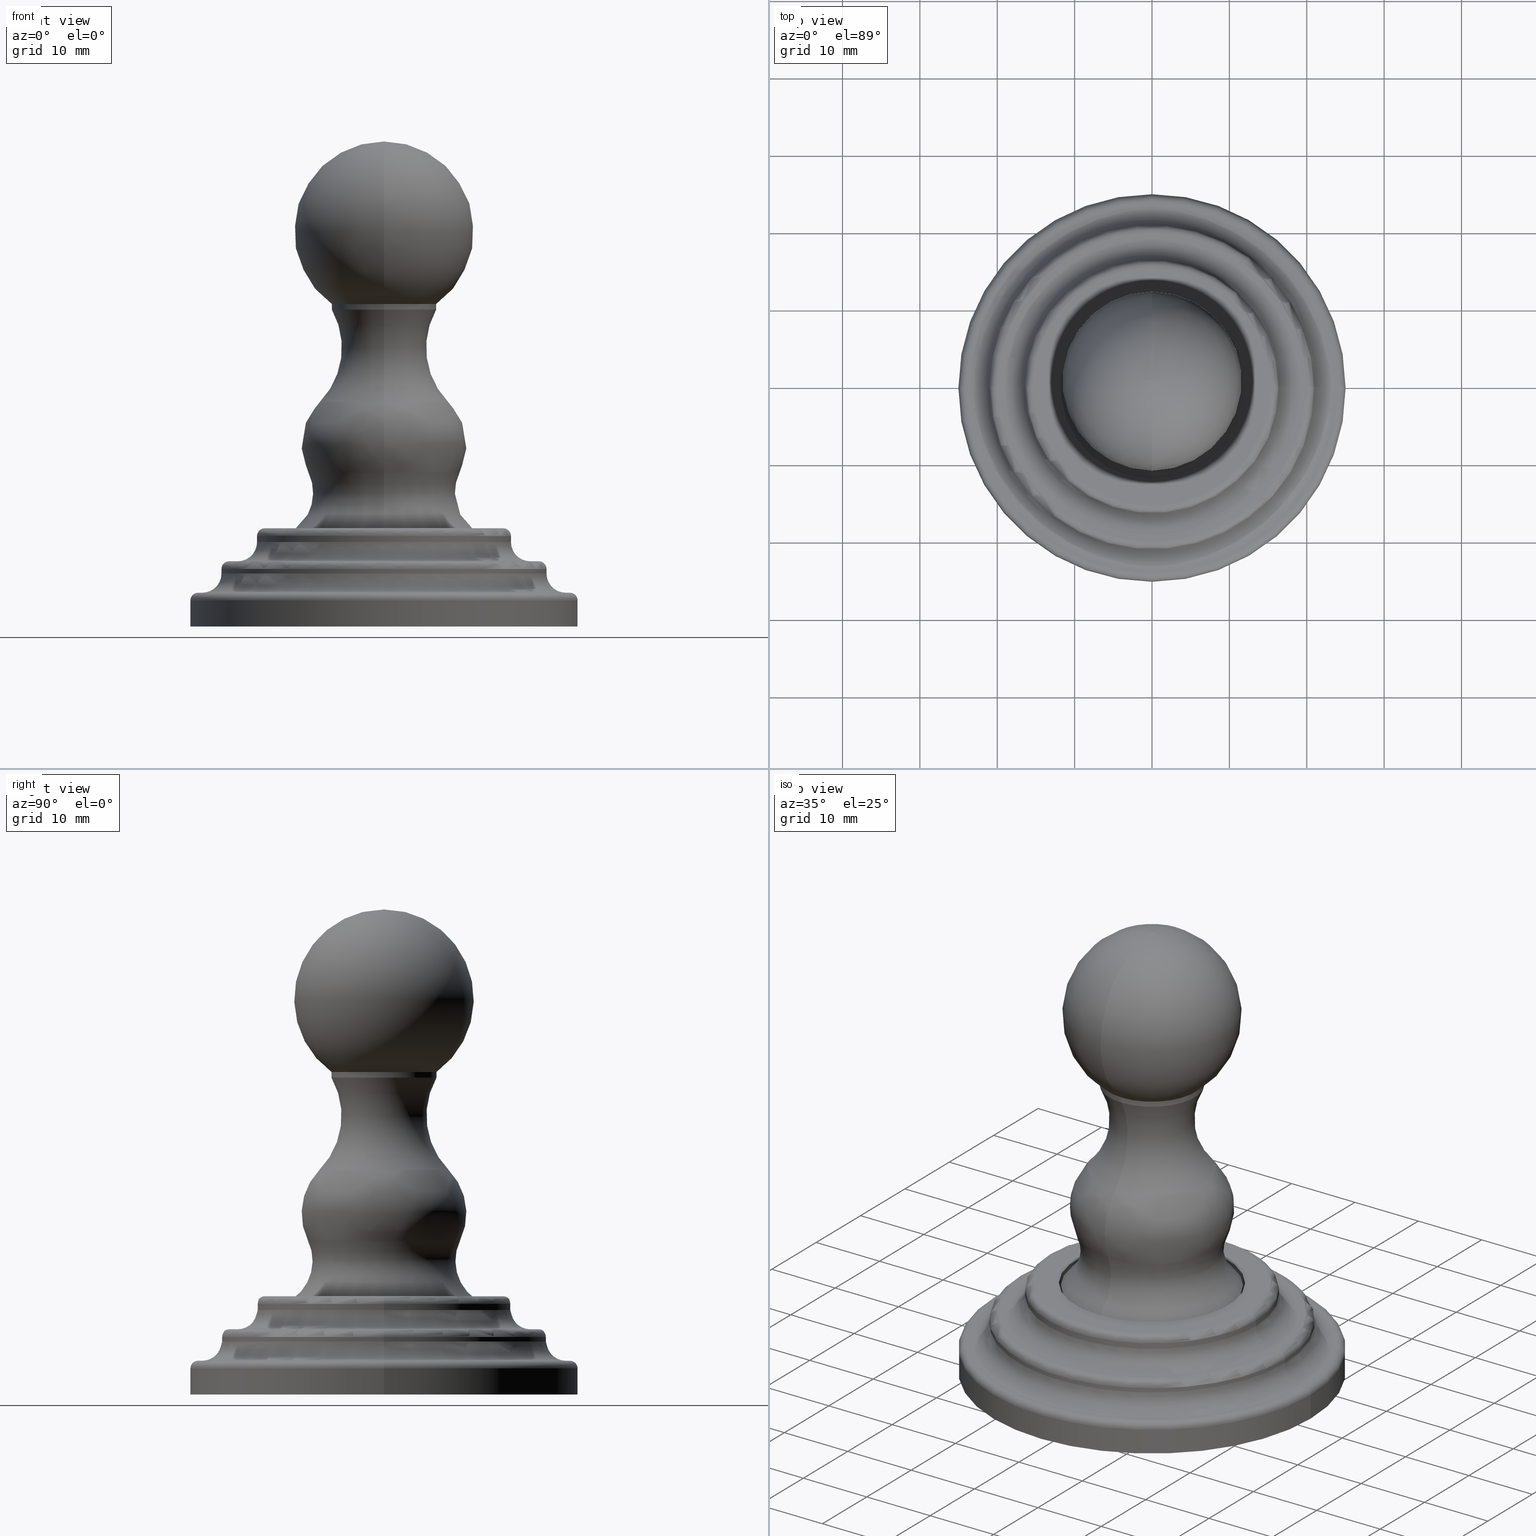
[diagram: canonical four-view strip — front | top / right | iso, engineering-drawing reading convention]
A machine part, canonical four-view strip (front | top / right | iso — engineering-drawing reading convention). The complete STEP part file that produces these views, byte-faithful:
ISO-10303-21;
HEADER;
FILE_DESCRIPTION((''),'2;1');
FILE_NAME('1110','2021-09-03T10:40:06',('rsmith'),(''),
'CREO PARAMETRIC BY PTC INC, 2018400','CREO PARAMETRIC BY PTC INC, 2018400','');
FILE_SCHEMA(('AUTOMOTIVE_DESIGN { 1 0 10303 214 1 1 1 1 }'));
ENDSEC;
DATA;
#157=CARTESIAN_POINT('',(-1.226274579390E-14,0.E0,1.33E-1));
#158=DIRECTION('',(0.E0,0.E0,1.E0));
#159=DIRECTION('',(-1.E0,0.E0,0.E0));
#160=AXIS2_PLACEMENT_3D('',#157,#158,#159);
#162=DRAUGHTING_PRE_DEFINED_CURVE_FONT('continuous');
#163=CURVE_STYLE('',#162,POSITIVE_LENGTH_MEASURE(2.E-2),#155);
#164=PRESENTATION_STYLE_ASSIGNMENT((#163));
#165=STYLED_ITEM('',(#164),#161);
#166=CARTESIAN_POINT('',(-1.224645799147E-14,0.E0,0.E0));
#167=DIRECTION('',(0.E0,0.E0,1.E0));
#168=DIRECTION('',(-1.E0,0.E0,0.E0));
#169=AXIS2_PLACEMENT_3D('',#166,#167,#168);
#171=CURVE_STYLE('',#162,POSITIVE_LENGTH_MEASURE(2.E-2),#155);
#172=PRESENTATION_STYLE_ASSIGNMENT((#171));
#173=STYLED_ITEM('',(#172),#170);
#174=CARTESIAN_POINT('',(-9.46E-1,0.E0,1.33E-1));
#175=DIRECTION('',(0.E0,-1.E0,0.E0));
#176=DIRECTION('',(0.E0,0.E0,1.E0));
#177=AXIS2_PLACEMENT_3D('',#174,#175,#176);
#179=CURVE_STYLE('',#162,POSITIVE_LENGTH_MEASURE(2.E-2),#155);
#180=PRESENTATION_STYLE_ASSIGNMENT((#179));
#181=STYLED_ITEM('',(#180),#178);
#182=CARTESIAN_POINT('',(-1.226752191642E-14,0.E0,1.72E-1));
#183=DIRECTION('',(0.E0,0.E0,1.E0));
#184=DIRECTION('',(-1.E0,0.E0,0.E0));
#185=AXIS2_PLACEMENT_3D('',#182,#183,#184);
#187=CURVE_STYLE('',#162,POSITIVE_LENGTH_MEASURE(2.E-2),#155);
#188=PRESENTATION_STYLE_ASSIGNMENT((#187));
#189=STYLED_ITEM('',(#188),#186);
#190=CARTESIAN_POINT('',(-1.226752191642E-14,0.E0,1.72E-1));
#191=DIRECTION('',(0.E0,0.E0,1.E0));
#192=DIRECTION('',(1.E0,0.E0,0.E0));
#193=AXIS2_PLACEMENT_3D('',#190,#191,#192);
#195=CURVE_STYLE('',#162,POSITIVE_LENGTH_MEASURE(2.E-2),#155);
#196=PRESENTATION_STYLE_ASSIGNMENT((#195));
#197=STYLED_ITEM('',(#196),#194);
#198=CARTESIAN_POINT('',(9.46E-1,0.E0,1.33E-1));
#199=DIRECTION('',(0.E0,1.E0,0.E0));
#200=DIRECTION('',(0.E0,0.E0,1.E0));
#201=AXIS2_PLACEMENT_3D('',#198,#199,#200);
#203=CURVE_STYLE('',#162,POSITIVE_LENGTH_MEASURE(2.E-2),#155);
#204=PRESENTATION_STYLE_ASSIGNMENT((#203));
#205=STYLED_ITEM('',(#204),#202);
#206=CARTESIAN_POINT('',(-1.226274579390E-14,0.E0,1.33E-1));
#207=DIRECTION('',(0.E0,0.E0,1.E0));
#208=DIRECTION('',(1.E0,0.E0,0.E0));
#209=AXIS2_PLACEMENT_3D('',#206,#207,#208);
#211=CURVE_STYLE('',#162,POSITIVE_LENGTH_MEASURE(2.E-2),#155);
#212=PRESENTATION_STYLE_ASSIGNMENT((#211));
#213=STYLED_ITEM('',(#212),#210);
#214=DIRECTION('',(0.E0,4.781184846532E-13,1.E0));
#215=VECTOR('',#214,1.33E-1);
#216=CARTESIAN_POINT('',(-9.85E-1,0.E0,0.E0));
#217=LINE('',#216,#215);
#218=CURVE_STYLE('',#162,POSITIVE_LENGTH_MEASURE(2.E-2),#155);
#219=PRESENTATION_STYLE_ASSIGNMENT((#218));
#220=STYLED_ITEM('',(#219),#217);
#221=CARTESIAN_POINT('',(-1.224645799147E-14,0.E0,0.E0));
#222=DIRECTION('',(0.E0,0.E0,-1.E0));
#223=DIRECTION('',(-1.E0,0.E0,0.E0));
#224=AXIS2_PLACEMENT_3D('',#221,#222,#223);
#226=CURVE_STYLE('',#162,POSITIVE_LENGTH_MEASURE(2.E-2),#155);
#227=PRESENTATION_STYLE_ASSIGNMENT((#226));
#228=STYLED_ITEM('',(#227),#225);
#229=DIRECTION('',(0.E0,-4.798041228459E-13,1.E0));
#230=VECTOR('',#229,1.33E-1);
#231=CARTESIAN_POINT('',(9.85E-1,0.E0,0.E0));
#232=LINE('',#231,#230);
#233=CURVE_STYLE('',#162,POSITIVE_LENGTH_MEASURE(2.E-2),#155);
#234=PRESENTATION_STYLE_ASSIGNMENT((#233));
#235=STYLED_ITEM('',(#234),#232);
#236=CARTESIAN_POINT('',(-1.226752191642E-14,0.E0,1.72E-1));
#237=DIRECTION('',(0.E0,0.E0,1.E0));
#238=DIRECTION('',(-1.E0,0.E0,0.E0));
#239=AXIS2_PLACEMENT_3D('',#236,#237,#238);
#241=CURVE_STYLE('',#162,POSITIVE_LENGTH_MEASURE(2.E-2),#155);
#242=PRESENTATION_STYLE_ASSIGNMENT((#241));
#243=STYLED_ITEM('',(#242),#240);
#244=CARTESIAN_POINT('',(-9.25E-1,0.E0,2.7E-1));
#245=DIRECTION('',(0.E0,-1.E0,0.E0));
#246=DIRECTION('',(0.E0,0.E0,-1.E0));
#247=AXIS2_PLACEMENT_3D('',#244,#245,#246);
#249=CURVE_STYLE('',#162,POSITIVE_LENGTH_MEASURE(2.E-2),#155);
#250=PRESENTATION_STYLE_ASSIGNMENT((#249));
#251=STYLED_ITEM('',(#250),#248);
#252=CARTESIAN_POINT('',(-1.226752191642E-14,0.E0,1.72E-1));
#253=DIRECTION('',(0.E0,0.E0,-1.E0));
#254=DIRECTION('',(-1.E0,0.E0,0.E0));
#255=AXIS2_PLACEMENT_3D('',#252,#253,#254);
#257=CURVE_STYLE('',#162,POSITIVE_LENGTH_MEASURE(2.E-2),#155);
#258=PRESENTATION_STYLE_ASSIGNMENT((#257));
#259=STYLED_ITEM('',(#258),#256);
#260=CARTESIAN_POINT('',(9.25E-1,0.E0,2.7E-1));
#261=DIRECTION('',(0.E0,1.E0,0.E0));
#262=DIRECTION('',(0.E0,0.E0,-1.E0));
#263=AXIS2_PLACEMENT_3D('',#260,#261,#262);
#265=CURVE_STYLE('',#162,POSITIVE_LENGTH_MEASURE(2.E-2),#155);
#266=PRESENTATION_STYLE_ASSIGNMENT((#265));
#267=STYLED_ITEM('',(#266),#264);
#268=CARTESIAN_POINT('',(-1.228234014269E-14,0.E0,2.93E-1));
#269=DIRECTION('',(0.E0,0.E0,1.E0));
#270=DIRECTION('',(1.E0,0.E0,0.E0));
#271=AXIS2_PLACEMENT_3D('',#268,#269,#270);
#273=CURVE_STYLE('',#162,POSITIVE_LENGTH_MEASURE(2.E-2),#155);
#274=PRESENTATION_STYLE_ASSIGNMENT((#273));
#275=STYLED_ITEM('',(#274),#272);
#276=DIRECTION('',(0.E0,3.776068754177E-12,1.E0));
#277=VECTOR('',#276,2.3E-2);
#278=CARTESIAN_POINT('',(-8.27E-1,0.E0,2.7E-1));
#279=LINE('',#278,#277);
#280=CURVE_STYLE('',#162,POSITIVE_LENGTH_MEASURE(2.E-2),#155);
#281=PRESENTATION_STYLE_ASSIGNMENT((#280));
#282=STYLED_ITEM('',(#281),#279);
#283=CARTESIAN_POINT('',(-1.227952345505E-14,0.E0,2.7E-1));
#284=DIRECTION('',(0.E0,0.E0,-1.E0));
#285=DIRECTION('',(-1.E0,0.E0,0.E0));
#286=AXIS2_PLACEMENT_3D('',#283,#284,#285);
#288=CURVE_STYLE('',#162,POSITIVE_LENGTH_MEASURE(2.E-2),#155);
#289=PRESENTATION_STYLE_ASSIGNMENT((#288));
#290=STYLED_ITEM('',(#289),#287);
#291=DIRECTION('',(0.E0,-3.772270765684E-12,1.E0));
#292=VECTOR('',#291,2.3E-2);
#293=CARTESIAN_POINT('',(8.27E-1,0.E0,2.7E-1));
#294=LINE('',#293,#292);
#295=CURVE_STYLE('',#162,POSITIVE_LENGTH_MEASURE(2.E-2),#155);
#296=PRESENTATION_STYLE_ASSIGNMENT((#295));
#297=STYLED_ITEM('',(#296),#294);
#298=CARTESIAN_POINT('',(7.88E-1,0.E0,2.93E-1));
#299=DIRECTION('',(0.E0,1.E0,0.E0));
#300=DIRECTION('',(0.E0,0.E0,1.E0));
#301=AXIS2_PLACEMENT_3D('',#298,#299,#300);
#303=CURVE_STYLE('',#162,POSITIVE_LENGTH_MEASURE(2.E-2),#155);
#304=PRESENTATION_STYLE_ASSIGNMENT((#303));
#305=STYLED_ITEM('',(#304),#302);
#306=CARTESIAN_POINT('',(-1.228711626521E-14,0.E0,3.32E-1));
#307=DIRECTION('',(0.E0,0.E0,1.E0));
#308=DIRECTION('',(-1.E0,0.E0,0.E0));
#309=AXIS2_PLACEMENT_3D('',#306,#307,#308);
#311=CURVE_STYLE('',#162,POSITIVE_LENGTH_MEASURE(2.E-2),#155);
#312=PRESENTATION_STYLE_ASSIGNMENT((#311));
#313=STYLED_ITEM('',(#312),#310);
#314=CARTESIAN_POINT('',(-1.228711626521E-14,0.E0,3.32E-1));
#315=DIRECTION('',(0.E0,0.E0,1.E0));
#316=DIRECTION('',(1.E0,0.E0,0.E0));
#317=AXIS2_PLACEMENT_3D('',#314,#315,#316);
#319=CURVE_STYLE('',#162,POSITIVE_LENGTH_MEASURE(2.E-2),#155);
#320=PRESENTATION_STYLE_ASSIGNMENT((#319));
#321=STYLED_ITEM('',(#320),#318);
#322=CARTESIAN_POINT('',(-7.88E-1,0.E0,2.93E-1));
#323=DIRECTION('',(0.E0,-1.E0,0.E0));
#324=DIRECTION('',(0.E0,0.E0,1.E0));
#325=AXIS2_PLACEMENT_3D('',#322,#323,#324);
#327=CURVE_STYLE('',#162,POSITIVE_LENGTH_MEASURE(2.E-2),#155);
#328=PRESENTATION_STYLE_ASSIGNMENT((#327));
#329=STYLED_ITEM('',(#328),#326);
#330=CARTESIAN_POINT('',(-1.228234014269E-14,0.E0,2.93E-1));
#331=DIRECTION('',(0.E0,0.E0,1.E0));
#332=DIRECTION('',(-1.E0,0.E0,0.E0));
#333=AXIS2_PLACEMENT_3D('',#330,#331,#332);
#335=CURVE_STYLE('',#162,POSITIVE_LENGTH_MEASURE(2.E-2),#155);
#336=PRESENTATION_STYLE_ASSIGNMENT((#335));
#337=STYLED_ITEM('',(#336),#334);
#338=CARTESIAN_POINT('',(-1.227952345505E-14,0.E0,2.7E-1));
#339=DIRECTION('',(0.E0,0.E0,1.E0));
#340=DIRECTION('',(-1.E0,0.E0,0.E0));
#341=AXIS2_PLACEMENT_3D('',#338,#339,#340);
#343=CURVE_STYLE('',#162,POSITIVE_LENGTH_MEASURE(2.E-2),#155);
#344=PRESENTATION_STYLE_ASSIGNMENT((#343));
#345=STYLED_ITEM('',(#344),#342);
#346=CARTESIAN_POINT('',(-1.228711626521E-14,0.E0,3.32E-1));
#347=DIRECTION('',(0.E0,0.E0,1.E0));
#348=DIRECTION('',(-1.E0,0.E0,0.E0));
#349=AXIS2_PLACEMENT_3D('',#346,#347,#348);
#351=CURVE_STYLE('',#162,POSITIVE_LENGTH_MEASURE(2.E-2),#155);
#352=PRESENTATION_STYLE_ASSIGNMENT((#351));
#353=STYLED_ITEM('',(#352),#350);
#354=CARTESIAN_POINT('',(-7.44E-1,0.E0,4.3E-1));
#355=DIRECTION('',(0.E0,-1.E0,0.E0));
#356=DIRECTION('',(0.E0,0.E0,-1.E0));
#357=AXIS2_PLACEMENT_3D('',#354,#355,#356);
#359=CURVE_STYLE('',#162,POSITIVE_LENGTH_MEASURE(2.E-2),#155);
#360=PRESENTATION_STYLE_ASSIGNMENT((#359));
#361=STYLED_ITEM('',(#360),#358);
#362=CARTESIAN_POINT('',(-1.228711626521E-14,0.E0,3.32E-1));
#363=DIRECTION('',(0.E0,0.E0,-1.E0));
#364=DIRECTION('',(-1.E0,0.E0,0.E0));
#365=AXIS2_PLACEMENT_3D('',#362,#363,#364);
#367=CURVE_STYLE('',#162,POSITIVE_LENGTH_MEASURE(2.E-2),#155);
#368=PRESENTATION_STYLE_ASSIGNMENT((#367));
#369=STYLED_ITEM('',(#368),#366);
#370=CARTESIAN_POINT('',(7.44E-1,0.E0,4.3E-1));
#371=DIRECTION('',(0.E0,1.E0,0.E0));
#372=DIRECTION('',(0.E0,0.E0,-1.E0));
#373=AXIS2_PLACEMENT_3D('',#370,#371,#372);
#375=CURVE_STYLE('',#162,POSITIVE_LENGTH_MEASURE(2.E-2),#155);
#376=PRESENTATION_STYLE_ASSIGNMENT((#375));
#377=STYLED_ITEM('',(#376),#374);
#378=CARTESIAN_POINT('',(-1.230291420891E-14,0.E0,4.61E-1));
#379=DIRECTION('',(0.E0,0.E0,1.E0));
#380=DIRECTION('',(1.E0,0.E0,0.E0));
#381=AXIS2_PLACEMENT_3D('',#378,#379,#380);
#383=CURVE_STYLE('',#162,POSITIVE_LENGTH_MEASURE(2.E-2),#155);
#384=PRESENTATION_STYLE_ASSIGNMENT((#383));
#385=STYLED_ITEM('',(#384),#382);
#386=DIRECTION('',(0.E0,3.514269968220E-12,1.E0));
#387=VECTOR('',#386,3.1E-2);
#388=CARTESIAN_POINT('',(-6.46E-1,0.E0,4.3E-1));
#389=LINE('',#388,#387);
#390=CURVE_STYLE('',#162,POSITIVE_LENGTH_MEASURE(2.E-2),#155);
#391=PRESENTATION_STYLE_ASSIGNMENT((#390));
#392=STYLED_ITEM('',(#391),#389);
#393=CARTESIAN_POINT('',(-1.229911780384E-14,0.E0,4.3E-1));
#394=DIRECTION('',(0.E0,0.E0,-1.E0));
#395=DIRECTION('',(-1.E0,0.E0,0.E0));
#396=AXIS2_PLACEMENT_3D('',#393,#394,#395);
#398=CURVE_STYLE('',#162,POSITIVE_LENGTH_MEASURE(2.E-2),#155);
#399=PRESENTATION_STYLE_ASSIGNMENT((#398));
#400=STYLED_ITEM('',(#399),#397);
#401=DIRECTION('',(0.E0,-3.513608926658E-12,1.E0));
#402=VECTOR('',#401,3.1E-2);
#403=CARTESIAN_POINT('',(6.46E-1,0.E0,4.3E-1));
#404=LINE('',#403,#402);
#405=CURVE_STYLE('',#162,POSITIVE_LENGTH_MEASURE(2.E-2),#155);
#406=PRESENTATION_STYLE_ASSIGNMENT((#405));
#407=STYLED_ITEM('',(#406),#404);
#408=CARTESIAN_POINT('',(6.07E-1,0.E0,4.61E-1));
#409=DIRECTION('',(0.E0,1.E0,0.E0));
#410=DIRECTION('',(0.E0,0.E0,1.E0));
#411=AXIS2_PLACEMENT_3D('',#408,#409,#410);
#413=CURVE_STYLE('',#162,POSITIVE_LENGTH_MEASURE(2.E-2),#155);
#414=PRESENTATION_STYLE_ASSIGNMENT((#413));
#415=STYLED_ITEM('',(#414),#412);
#416=CARTESIAN_POINT('',(-1.230769033143E-14,0.E0,5.E-1));
#417=DIRECTION('',(0.E0,0.E0,1.E0));
#418=DIRECTION('',(-1.E0,0.E0,0.E0));
#419=AXIS2_PLACEMENT_3D('',#416,#417,#418);
#421=CURVE_STYLE('',#162,POSITIVE_LENGTH_MEASURE(2.E-2),#155);
#422=PRESENTATION_STYLE_ASSIGNMENT((#421));
#423=STYLED_ITEM('',(#422),#420);
#424=CARTESIAN_POINT('',(-1.230769033143E-14,0.E0,5.E-1));
#425=DIRECTION('',(0.E0,0.E0,1.E0));
#426=DIRECTION('',(1.E0,0.E0,0.E0));
#427=AXIS2_PLACEMENT_3D('',#424,#425,#426);
#429=CURVE_STYLE('',#162,POSITIVE_LENGTH_MEASURE(2.E-2),#155);
#430=PRESENTATION_STYLE_ASSIGNMENT((#429));
#431=STYLED_ITEM('',(#430),#428);
#432=CARTESIAN_POINT('',(0.E0,0.E0,5.E-1));
#433=DIRECTION('',(0.E0,0.E0,1.E0));
#434=DIRECTION('',(0.E0,-1.E0,0.E0));
#435=AXIS2_PLACEMENT_3D('',#432,#433,#434);
#437=CURVE_STYLE('',#162,POSITIVE_LENGTH_MEASURE(2.E-2),#155);
#438=PRESENTATION_STYLE_ASSIGNMENT((#437));
#439=STYLED_ITEM('',(#438),#436);
#440=CARTESIAN_POINT('',(0.E0,0.E0,5.E-1));
#441=DIRECTION('',(0.E0,0.E0,1.E0));
#442=DIRECTION('',(0.E0,1.E0,0.E0));
#443=AXIS2_PLACEMENT_3D('',#440,#441,#442);
#445=CURVE_STYLE('',#162,POSITIVE_LENGTH_MEASURE(2.E-2),#155);
#446=PRESENTATION_STYLE_ASSIGNMENT((#445));
#447=STYLED_ITEM('',(#446),#444);
#448=CARTESIAN_POINT('',(-6.07E-1,0.E0,4.61E-1));
#449=DIRECTION('',(0.E0,-1.E0,0.E0));
#450=DIRECTION('',(0.E0,0.E0,1.E0));
#451=AXIS2_PLACEMENT_3D('',#448,#449,#450);
#453=CURVE_STYLE('',#162,POSITIVE_LENGTH_MEASURE(2.E-2),#155);
#454=PRESENTATION_STYLE_ASSIGNMENT((#453));
#455=STYLED_ITEM('',(#454),#452);
#456=CARTESIAN_POINT('',(-1.230291420891E-14,0.E0,4.61E-1));
#457=DIRECTION('',(0.E0,0.E0,1.E0));
#458=DIRECTION('',(-1.E0,0.E0,0.E0));
#459=AXIS2_PLACEMENT_3D('',#456,#457,#458);
#461=CURVE_STYLE('',#162,POSITIVE_LENGTH_MEASURE(2.E-2),#155);
#462=PRESENTATION_STYLE_ASSIGNMENT((#461));
#463=STYLED_ITEM('',(#462),#460);
#464=CARTESIAN_POINT('',(-1.229911780384E-14,0.E0,4.3E-1));
#465=DIRECTION('',(0.E0,0.E0,1.E0));
#466=DIRECTION('',(-1.E0,0.E0,0.E0));
#467=AXIS2_PLACEMENT_3D('',#464,#465,#466);
#469=CURVE_STYLE('',#162,POSITIVE_LENGTH_MEASURE(2.E-2),#155);
#470=PRESENTATION_STYLE_ASSIGNMENT((#469));
#471=STYLED_ITEM('',(#470),#468);
#472=DIRECTION('',(0.E0,0.E0,-1.E0));
#473=VECTOR('',#472,7.9E-2);
#474=CARTESIAN_POINT('',(0.E0,-4.74E-1,5.E-1));
#475=LINE('',#474,#473);
#476=CURVE_STYLE('',#162,POSITIVE_LENGTH_MEASURE(2.E-2),#155);
#477=PRESENTATION_STYLE_ASSIGNMENT((#476));
#478=STYLED_ITEM('',(#477),#475);
#479=DIRECTION('',(0.E0,0.E0,-1.E0));
#480=VECTOR('',#479,7.9E-2);
#481=CARTESIAN_POINT('',(0.E0,4.74E-1,5.E-1));
#482=LINE('',#481,#480);
#483=CURVE_STYLE('',#162,POSITIVE_LENGTH_MEASURE(2.E-2),#155);
#484=PRESENTATION_STYLE_ASSIGNMENT((#483));
#485=STYLED_ITEM('',(#484),#482);
#486=CARTESIAN_POINT('',(0.E0,0.E0,4.21E-1));
#487=DIRECTION('',(0.E0,0.E0,1.E0));
#488=DIRECTION('',(0.E0,-1.E0,0.E0));
#489=AXIS2_PLACEMENT_3D('',#486,#487,#488);
#491=CURVE_STYLE('',#162,POSITIVE_LENGTH_MEASURE(2.E-2),#155);
#492=PRESENTATION_STYLE_ASSIGNMENT((#491));
#493=STYLED_ITEM('',(#492),#490);
#494=CARTESIAN_POINT('',(0.E0,0.E0,4.21E-1));
#495=DIRECTION('',(0.E0,0.E0,1.E0));
#496=DIRECTION('',(0.E0,1.E0,0.E0));
#497=AXIS2_PLACEMENT_3D('',#494,#495,#496);
#499=CURVE_STYLE('',#162,POSITIVE_LENGTH_MEASURE(2.E-2),#155);
#500=PRESENTATION_STYLE_ASSIGNMENT((#499));
#501=STYLED_ITEM('',(#500),#498);
#502=CARTESIAN_POINT('',(0.E0,0.E0,4.21E-1));
#503=DIRECTION('',(0.E0,0.E0,-1.E0));
#504=DIRECTION('',(0.E0,1.E0,0.E0));
#505=AXIS2_PLACEMENT_3D('',#502,#503,#504);
#507=CURVE_STYLE('',#162,POSITIVE_LENGTH_MEASURE(2.E-2),#155);
#508=PRESENTATION_STYLE_ASSIGNMENT((#507));
#509=STYLED_ITEM('',(#508),#506);
#510=CARTESIAN_POINT('',(0.E0,0.E0,4.21E-1));
#511=DIRECTION('',(0.E0,0.E0,-1.E0));
#512=DIRECTION('',(0.E0,-1.E0,0.E0));
#513=AXIS2_PLACEMENT_3D('',#510,#511,#512);
#515=CURVE_STYLE('',#162,POSITIVE_LENGTH_MEASURE(2.E-2),#155);
#516=PRESENTATION_STYLE_ASSIGNMENT((#515));
#517=STYLED_ITEM('',(#516),#514);
#518=DIRECTION('',(0.E0,0.E0,1.E0));
#519=VECTOR('',#518,6.6E-2);
#520=CARTESIAN_POINT('',(0.E0,4.64E-1,4.21E-1));
#521=LINE('',#520,#519);
#522=CURVE_STYLE('',#162,POSITIVE_LENGTH_MEASURE(2.E-2),#155);
#523=PRESENTATION_STYLE_ASSIGNMENT((#522));
#524=STYLED_ITEM('',(#523),#521);
#525=DIRECTION('',(0.E0,0.E0,1.E0));
#526=VECTOR('',#525,6.6E-2);
#527=CARTESIAN_POINT('',(0.E0,-4.64E-1,4.21E-1));
#528=LINE('',#527,#526);
#529=CURVE_STYLE('',#162,POSITIVE_LENGTH_MEASURE(2.E-2),#155);
#530=PRESENTATION_STYLE_ASSIGNMENT((#529));
#531=STYLED_ITEM('',(#530),#528);
#532=CARTESIAN_POINT('',(0.E0,5.995975670429E-1,6.804254673311E-1));
#533=DIRECTION('',(-1.E0,0.E0,0.E0));
#534=DIRECTION('',(0.E0,-5.740297004816E-1,-8.188344783685E-1));
#535=AXIS2_PLACEMENT_3D('',#532,#533,#534);
#537=CURVE_STYLE('',#162,POSITIVE_LENGTH_MEASURE(2.E-2),#155);
#538=PRESENTATION_STYLE_ASSIGNMENT((#537));
#539=STYLED_ITEM('',(#538),#536);
#540=CARTESIAN_POINT('',(0.E0,-5.995975670429E-1,6.804254673311E-1));
#541=DIRECTION('',(1.E0,0.E0,0.E0));
#542=DIRECTION('',(0.E0,5.740297004816E-1,-8.188344783685E-1));
#543=AXIS2_PLACEMENT_3D('',#540,#541,#542);
#545=CURVE_STYLE('',#162,POSITIVE_LENGTH_MEASURE(2.E-2),#155);
#546=PRESENTATION_STYLE_ASSIGNMENT((#545));
#547=STYLED_ITEM('',(#546),#544);
#548=CARTESIAN_POINT('',(0.E0,0.E0,4.87E-1));
#549=DIRECTION('',(0.E0,0.E0,1.E0));
#550=DIRECTION('',(0.E0,1.E0,0.E0));
#551=AXIS2_PLACEMENT_3D('',#548,#549,#550);
#553=CURVE_STYLE('',#162,POSITIVE_LENGTH_MEASURE(2.E-2),#155);
#554=PRESENTATION_STYLE_ASSIGNMENT((#553));
#555=STYLED_ITEM('',(#554),#552);
#556=CARTESIAN_POINT('',(0.E0,0.E0,4.87E-1));
#557=DIRECTION('',(0.E0,0.E0,-1.E0));
#558=DIRECTION('',(0.E0,1.E0,0.E0));
#559=AXIS2_PLACEMENT_3D('',#556,#557,#558);
#561=CURVE_STYLE('',#162,POSITIVE_LENGTH_MEASURE(2.E-2),#155);
#562=PRESENTATION_STYLE_ASSIGNMENT((#561));
#563=STYLED_ITEM('',(#562),#560);
#564=CARTESIAN_POINT('',(0.E0,0.E0,7.839705129660E-1));
#565=DIRECTION('',(0.E0,0.E0,-1.E0));
#566=DIRECTION('',(0.E0,1.E0,0.E0));
#567=AXIS2_PLACEMENT_3D('',#564,#565,#566);
#569=CURVE_STYLE('',#162,POSITIVE_LENGTH_MEASURE(2.E-2),#155);
#570=PRESENTATION_STYLE_ASSIGNMENT((#569));
#571=STYLED_ITEM('',(#570),#568);
#572=CARTESIAN_POINT('',(0.E0,1.041910873487E-1,9.220305738123E-1));
#573=DIRECTION('',(1.E0,0.E0,0.E0));
#574=DIRECTION('',(0.E0,8.988088988744E-1,-4.383406931876E-1));
#575=AXIS2_PLACEMENT_3D('',#572,#573,#574);
#577=CURVE_STYLE('',#162,POSITIVE_LENGTH_MEASURE(2.E-2),#155);
#578=PRESENTATION_STYLE_ASSIGNMENT((#577));
#579=STYLED_ITEM('',(#578),#576);
#580=CARTESIAN_POINT('',(0.E0,-1.041910873487E-1,9.220305738123E-1));
#581=DIRECTION('',(-1.E0,0.E0,0.E0));
#582=DIRECTION('',(0.E0,-8.988088988744E-1,-4.383406931876E-1));
#583=AXIS2_PLACEMENT_3D('',#580,#581,#582);
#585=CURVE_STYLE('',#162,POSITIVE_LENGTH_MEASURE(2.E-2),#155);
#586=PRESENTATION_STYLE_ASSIGNMENT((#585));
#587=STYLED_ITEM('',(#586),#584);
#588=CARTESIAN_POINT('',(0.E0,0.E0,7.839705129660E-1));
#589=DIRECTION('',(0.E0,0.E0,1.E0));
#590=DIRECTION('',(0.E0,1.E0,0.E0));
#591=AXIS2_PLACEMENT_3D('',#588,#589,#590);
#593=CURVE_STYLE('',#162,POSITIVE_LENGTH_MEASURE(2.E-2),#155);
#594=PRESENTATION_STYLE_ASSIGNMENT((#593));
#595=STYLED_ITEM('',(#594),#592);
#596=CARTESIAN_POINT('',(0.E0,6.097361008040E-1,1.418644351080E0));
#597=DIRECTION('',(-1.E0,0.E0,0.E0));
#598=DIRECTION('',(0.E0,-7.133801856540E-1,-7.007772190334E-1));
#599=AXIS2_PLACEMENT_3D('',#596,#597,#598);
#601=CURVE_STYLE('',#162,POSITIVE_LENGTH_MEASURE(2.E-2),#155);
#602=PRESENTATION_STYLE_ASSIGNMENT((#601));
#603=STYLED_ITEM('',(#602),#600);
#604=CARTESIAN_POINT('',(0.E0,-6.097361008040E-1,1.418644351080E0));
#605=DIRECTION('',(1.E0,0.E0,0.E0));
#606=DIRECTION('',(0.E0,7.133801856540E-1,-7.007772190334E-1));
#607=AXIS2_PLACEMENT_3D('',#604,#605,#606);
#609=CURVE_STYLE('',#162,POSITIVE_LENGTH_MEASURE(2.E-2),#155);
#610=PRESENTATION_STYLE_ASSIGNMENT((#609));
#611=STYLED_ITEM('',(#610),#608);
#612=CARTESIAN_POINT('',(0.E0,0.E0,1.142747808153E0));
#613=DIRECTION('',(0.E0,0.E0,1.E0));
#614=DIRECTION('',(0.E0,1.E0,0.E0));
#615=AXIS2_PLACEMENT_3D('',#612,#613,#614);
#617=CURVE_STYLE('',#162,POSITIVE_LENGTH_MEASURE(2.E-2),#155);
#618=PRESENTATION_STYLE_ASSIGNMENT((#617));
#619=STYLED_ITEM('',(#618),#616);
#620=CARTESIAN_POINT('',(0.E0,0.E0,1.142747808153E0));
#621=DIRECTION('',(0.E0,0.E0,-1.E0));
#622=DIRECTION('',(0.E0,1.E0,0.E0));
#623=AXIS2_PLACEMENT_3D('',#620,#621,#622);
#625=CURVE_STYLE('',#162,POSITIVE_LENGTH_MEASURE(2.E-2),#155);
#626=PRESENTATION_STYLE_ASSIGNMENT((#625));
#627=STYLED_ITEM('',(#626),#624);
#628=CARTESIAN_POINT('',(0.E0,0.E0,1.612582374098E0));
#629=DIRECTION('',(0.E0,0.E0,-1.E0));
#630=DIRECTION('',(0.E0,1.E0,0.E0));
#631=AXIS2_PLACEMENT_3D('',#628,#629,#630);
#633=CURVE_STYLE('',#162,POSITIVE_LENGTH_MEASURE(2.E-2),#155);
#634=PRESENTATION_STYLE_ASSIGNMENT((#633));
#635=STYLED_ITEM('',(#634),#632);
#636=DIRECTION('',(0.E0,0.E0,1.E0));
#637=VECTOR('',#636,2.854024353737E-2);
#638=CARTESIAN_POINT('',(0.E0,2.671162630414E-1,1.612582374098E0));
#639=LINE('',#638,#637);
#640=CURVE_STYLE('',#162,POSITIVE_LENGTH_MEASURE(2.E-2),#155);
#641=PRESENTATION_STYLE_ASSIGNMENT((#640));
#642=STYLED_ITEM('',(#641),#639);
#643=DIRECTION('',(0.E0,0.E0,1.E0));
#644=VECTOR('',#643,2.854024353737E-2);
#645=CARTESIAN_POINT('',(0.E0,-2.671162630414E-1,1.612582374098E0));
#646=LINE('',#645,#644);
#647=CURVE_STYLE('',#162,POSITIVE_LENGTH_MEASURE(2.E-2),#155);
#648=PRESENTATION_STYLE_ASSIGNMENT((#647));
#649=STYLED_ITEM('',(#648),#646);
#650=CARTESIAN_POINT('',(0.E0,0.E0,1.612582374098E0));
#651=DIRECTION('',(0.E0,0.E0,1.E0));
#652=DIRECTION('',(0.E0,1.E0,0.E0));
#653=AXIS2_PLACEMENT_3D('',#650,#651,#652);
#655=CURVE_STYLE('',#162,POSITIVE_LENGTH_MEASURE(2.E-2),#155);
#656=PRESENTATION_STYLE_ASSIGNMENT((#655));
#657=STYLED_ITEM('',(#656),#654);
#658=CARTESIAN_POINT('',(0.E0,0.E0,2.011551179109E0));
#659=DIRECTION('',(1.E0,0.E0,0.E0));
#660=DIRECTION('',(0.E0,5.848925070044E-1,-8.111108156412E-1));
#661=AXIS2_PLACEMENT_3D('',#658,#659,#660);
#663=CURVE_STYLE('',#162,POSITIVE_LENGTH_MEASURE(2.E-2),#155);
#664=PRESENTATION_STYLE_ASSIGNMENT((#663));
#665=STYLED_ITEM('',(#664),#662);
#666=CARTESIAN_POINT('',(0.E0,0.E0,2.011551179109E0));
#667=DIRECTION('',(-1.E0,0.E0,0.E0));
#668=DIRECTION('',(0.E0,-5.848925070044E-1,-8.111108156412E-1));
#669=AXIS2_PLACEMENT_3D('',#666,#667,#668);
#671=CURVE_STYLE('',#162,POSITIVE_LENGTH_MEASURE(2.E-2),#155);
#672=PRESENTATION_STYLE_ASSIGNMENT((#671));
#673=STYLED_ITEM('',(#672),#670);
#674=CARTESIAN_POINT('',(0.E0,0.E0,1.641122617635E0));
#675=DIRECTION('',(0.E0,0.E0,1.E0));
#676=DIRECTION('',(0.E0,1.E0,0.E0));
#677=AXIS2_PLACEMENT_3D('',#674,#675,#676);
#679=CURVE_STYLE('',#162,POSITIVE_LENGTH_MEASURE(2.E-2),#155);
#680=PRESENTATION_STYLE_ASSIGNMENT((#679));
#681=STYLED_ITEM('',(#680),#678);
#682=CARTESIAN_POINT('',(0.E0,0.E0,1.641122617635E0));
#683=DIRECTION('',(0.E0,0.E0,-1.E0));
#684=DIRECTION('',(0.E0,1.E0,0.E0));
#685=AXIS2_PLACEMENT_3D('',#682,#683,#684);
#687=CURVE_STYLE('',#162,POSITIVE_LENGTH_MEASURE(2.E-2),#155);
#688=PRESENTATION_STYLE_ASSIGNMENT((#687));
#689=STYLED_ITEM('',(#688),#686);
#690=CARTESIAN_POINT('',(-9.25E-1,0.E0,1.72E-1));
#691=CARTESIAN_POINT('',(-8.27E-1,0.E0,2.7E-1));
#692=VERTEX_POINT('',#690);
#693=VERTEX_POINT('',#691);
#694=CARTESIAN_POINT('',(-7.44E-1,0.E0,3.32E-1));
#695=CARTESIAN_POINT('',(-6.46E-1,0.E0,4.3E-1));
#696=VERTEX_POINT('',#694);
#697=VERTEX_POINT('',#695);
#698=CARTESIAN_POINT('',(9.25E-1,0.E0,1.72E-1));
#699=CARTESIAN_POINT('',(8.27E-1,0.E0,2.7E-1));
#700=VERTEX_POINT('',#698);
#701=VERTEX_POINT('',#699);
#702=CARTESIAN_POINT('',(7.44E-1,0.E0,3.32E-1));
#703=CARTESIAN_POINT('',(6.46E-1,0.E0,4.3E-1));
#704=VERTEX_POINT('',#702);
#705=VERTEX_POINT('',#703);
#706=CARTESIAN_POINT('',(-9.46E-1,0.E0,1.72E-1));
#707=CARTESIAN_POINT('',(9.46E-1,0.E0,1.72E-1));
#708=VERTEX_POINT('',#706);
#709=VERTEX_POINT('',#707);
#710=CARTESIAN_POINT('',(-9.85E-1,0.E0,1.33E-1));
#711=CARTESIAN_POINT('',(9.85E-1,0.E0,1.33E-1));
#712=VERTEX_POINT('',#710);
#713=VERTEX_POINT('',#711);
#714=CARTESIAN_POINT('',(-7.88E-1,0.E0,3.32E-1));
#715=CARTESIAN_POINT('',(7.88E-1,0.E0,3.32E-1));
#716=VERTEX_POINT('',#714);
#717=VERTEX_POINT('',#715);
#718=CARTESIAN_POINT('',(-8.27E-1,0.E0,2.93E-1));
#719=CARTESIAN_POINT('',(8.27E-1,0.E0,2.93E-1));
#720=VERTEX_POINT('',#718);
#721=VERTEX_POINT('',#719);
#722=CARTESIAN_POINT('',(-6.07E-1,0.E0,5.E-1));
#723=CARTESIAN_POINT('',(6.07E-1,0.E0,5.E-1));
#724=VERTEX_POINT('',#722);
#725=VERTEX_POINT('',#723);
#726=CARTESIAN_POINT('',(-6.46E-1,0.E0,4.61E-1));
#727=CARTESIAN_POINT('',(6.46E-1,0.E0,4.61E-1));
#728=VERTEX_POINT('',#726);
#729=VERTEX_POINT('',#727);
#730=CARTESIAN_POINT('',(-9.85E-1,0.E0,0.E0));
#731=VERTEX_POINT('',#730);
#732=CARTESIAN_POINT('',(9.85E-1,0.E0,0.E0));
#733=VERTEX_POINT('',#732);
#734=CARTESIAN_POINT('',(0.E0,-4.74E-1,4.21E-1));
#735=CARTESIAN_POINT('',(0.E0,4.74E-1,4.21E-1));
#736=VERTEX_POINT('',#734);
#737=VERTEX_POINT('',#735);
#738=CARTESIAN_POINT('',(0.E0,-4.74E-1,5.E-1));
#739=CARTESIAN_POINT('',(0.E0,4.74E-1,5.E-1));
#740=VERTEX_POINT('',#738);
#741=VERTEX_POINT('',#739);
#742=CARTESIAN_POINT('',(0.E0,4.64E-1,4.87E-1));
#743=CARTESIAN_POINT('',(0.E0,3.872805043167E-1,7.839705129660E-1));
#744=VERTEX_POINT('',#742);
#745=VERTEX_POINT('',#743);
#746=CARTESIAN_POINT('',(0.E0,3.288777599953E-1,1.142747808153E0));
#747=VERTEX_POINT('',#746);
#748=CARTESIAN_POINT('',(0.E0,2.671162630414E-1,1.612582374098E0));
#749=VERTEX_POINT('',#748);
#750=CARTESIAN_POINT('',(0.E0,2.671162630414E-1,1.641122617635E0));
#751=VERTEX_POINT('',#750);
#752=CARTESIAN_POINT('',(0.E0,0.E0,2.468244092495E0));
#753=VERTEX_POINT('',#752);
#754=CARTESIAN_POINT('',(0.E0,-4.64E-1,4.87E-1));
#755=CARTESIAN_POINT('',(0.E0,-3.872805043167E-1,7.839705129660E-1));
#756=VERTEX_POINT('',#754);
#757=VERTEX_POINT('',#755);
#758=CARTESIAN_POINT('',(0.E0,-3.288777599953E-1,1.142747808153E0));
#759=VERTEX_POINT('',#758);
#760=CARTESIAN_POINT('',(0.E0,-2.671162630414E-1,1.612582374098E0));
#761=VERTEX_POINT('',#760);
#762=CARTESIAN_POINT('',(0.E0,-2.671162630414E-1,1.641122617635E0));
#763=VERTEX_POINT('',#762);
#764=CARTESIAN_POINT('',(0.E0,4.64E-1,4.21E-1));
#765=CARTESIAN_POINT('',(0.E0,-4.64E-1,4.21E-1));
#766=VERTEX_POINT('',#764);
#767=VERTEX_POINT('',#765);
#768=CARTESIAN_POINT('',(-1.224339637448E-14,0.E0,-2.5E-2));
#769=DIRECTION('',(0.E0,0.E0,1.E0));
#770=DIRECTION('',(-1.E0,0.E0,0.E0));
#771=AXIS2_PLACEMENT_3D('',#768,#769,#770);
#772=CYLINDRICAL_SURFACE('',#771,9.85E-1);
#774=ORIENTED_EDGE('',*,*,#773,.T.);
#776=ORIENTED_EDGE('',*,*,#775,.F.);
#778=ORIENTED_EDGE('',*,*,#777,.F.);
#780=ORIENTED_EDGE('',*,*,#779,.T.);
#781=EDGE_LOOP('',(#774,#776,#778,#780));
#782=FACE_OUTER_BOUND('',#781,.F.);
#784=FILL_AREA_STYLE_COLOUR('',#83);
#785=FILL_AREA_STYLE('',(#784));
#786=SURFACE_STYLE_FILL_AREA(#785);
#787=SURFACE_SIDE_STYLE('',(#786));
#788=SURFACE_STYLE_USAGE(.POSITIVE.,#787);
#789=PRESENTATION_STYLE_ASSIGNMENT((#788));
#790=OVER_RIDING_STYLED_ITEM('',(#789),#783,#156);
#791=CARTESIAN_POINT('',(-1.226274579390E-14,0.E0,1.33E-1));
#792=DIRECTION('',(0.E0,0.E0,1.E0));
#793=DIRECTION('',(-9.999902347182E-1,4.419328928882E-3,0.E0));
#794=AXIS2_PLACEMENT_3D('',#791,#792,#793);
#795=TOROIDAL_SURFACE('',#794,9.46E-1,3.9E-2);
#797=ORIENTED_EDGE('',*,*,#796,.T.);
#799=ORIENTED_EDGE('',*,*,#798,.T.);
#800=ORIENTED_EDGE('',*,*,#773,.F.);
#802=ORIENTED_EDGE('',*,*,#801,.F.);
#803=EDGE_LOOP('',(#797,#799,#800,#802));
#804=FACE_OUTER_BOUND('',#803,.F.);
#806=FILL_AREA_STYLE_COLOUR('',#83);
#807=FILL_AREA_STYLE('',(#806));
#808=SURFACE_STYLE_FILL_AREA(#807);
#809=SURFACE_SIDE_STYLE('',(#808));
#810=SURFACE_STYLE_USAGE(.POSITIVE.,#809);
#811=PRESENTATION_STYLE_ASSIGNMENT((#810));
#812=OVER_RIDING_STYLED_ITEM('',(#811),#805,#156);
#813=CARTESIAN_POINT('',(-1.226752191642E-14,0.E0,1.72E-1));
#814=DIRECTION('',(0.E0,0.E0,1.E0));
#815=DIRECTION('',(-1.E0,0.E0,0.E0));
#816=AXIS2_PLACEMENT_3D('',#813,#814,#815);
#817=PLANE('',#816);
#818=ORIENTED_EDGE('',*,*,#796,.F.);
#820=ORIENTED_EDGE('',*,*,#819,.F.);
#821=EDGE_LOOP('',(#818,#820));
#822=FACE_OUTER_BOUND('',#821,.F.);
#824=ORIENTED_EDGE('',*,*,#823,.T.);
#826=ORIENTED_EDGE('',*,*,#825,.F.);
#827=EDGE_LOOP('',(#824,#826));
#828=FACE_BOUND('',#827,.F.);
#830=FILL_AREA_STYLE_COLOUR('',#83);
#831=FILL_AREA_STYLE('',(#830));
#832=SURFACE_STYLE_FILL_AREA(#831);
#833=SURFACE_SIDE_STYLE('',(#832));
#834=SURFACE_STYLE_USAGE(.POSITIVE.,#833);
#835=PRESENTATION_STYLE_ASSIGNMENT((#834));
#836=OVER_RIDING_STYLED_ITEM('',(#835),#829,#156);
#837=CARTESIAN_POINT('',(-1.226274579390E-14,0.E0,1.33E-1));
#838=DIRECTION('',(0.E0,0.E0,1.E0));
#839=DIRECTION('',(9.999902347182E-1,-4.419328928882E-3,0.E0));
#840=AXIS2_PLACEMENT_3D('',#837,#838,#839);
#841=TOROIDAL_SURFACE('',#840,9.46E-1,3.9E-2);
#842=ORIENTED_EDGE('',*,*,#819,.T.);
#843=ORIENTED_EDGE('',*,*,#801,.T.);
#845=ORIENTED_EDGE('',*,*,#844,.F.);
#846=ORIENTED_EDGE('',*,*,#798,.F.);
#847=EDGE_LOOP('',(#842,#843,#845,#846));
#848=FACE_OUTER_BOUND('',#847,.F.);
#850=FILL_AREA_STYLE_COLOUR('',#83);
#851=FILL_AREA_STYLE('',(#850));
#852=SURFACE_STYLE_FILL_AREA(#851);
#853=SURFACE_SIDE_STYLE('',(#852));
#854=SURFACE_STYLE_USAGE(.POSITIVE.,#853);
#855=PRESENTATION_STYLE_ASSIGNMENT((#854));
#856=OVER_RIDING_STYLED_ITEM('',(#855),#849,#156);
#857=CARTESIAN_POINT('',(-1.224339637448E-14,0.E0,-2.5E-2));
#858=DIRECTION('',(0.E0,0.E0,1.E0));
#859=DIRECTION('',(-1.E0,0.E0,0.E0));
#860=AXIS2_PLACEMENT_3D('',#857,#858,#859);
#861=CYLINDRICAL_SURFACE('',#860,9.85E-1);
#862=ORIENTED_EDGE('',*,*,#844,.T.);
#863=ORIENTED_EDGE('',*,*,#779,.F.);
#865=ORIENTED_EDGE('',*,*,#864,.T.);
#866=ORIENTED_EDGE('',*,*,#775,.T.);
#867=EDGE_LOOP('',(#862,#863,#865,#866));
#868=FACE_OUTER_BOUND('',#867,.F.);
#870=FILL_AREA_STYLE_COLOUR('',#83);
#871=FILL_AREA_STYLE('',(#870));
#872=SURFACE_STYLE_FILL_AREA(#871);
#873=SURFACE_SIDE_STYLE('',(#872));
#874=SURFACE_STYLE_USAGE(.POSITIVE.,#873);
#875=PRESENTATION_STYLE_ASSIGNMENT((#874));
#876=OVER_RIDING_STYLED_ITEM('',(#875),#869,#156);
#877=CARTESIAN_POINT('',(-1.224645799147E-14,0.E0,0.E0));
#878=DIRECTION('',(0.E0,0.E0,1.E0));
#879=DIRECTION('',(-1.E0,0.E0,0.E0));
#880=AXIS2_PLACEMENT_3D('',#877,#878,#879);
#881=PLANE('',#880);
#882=ORIENTED_EDGE('',*,*,#864,.F.);
#883=ORIENTED_EDGE('',*,*,#777,.T.);
#884=EDGE_LOOP('',(#882,#883));
#885=FACE_OUTER_BOUND('',#884,.F.);
#887=FILL_AREA_STYLE_COLOUR('',#83);
#888=FILL_AREA_STYLE('',(#887));
#889=SURFACE_STYLE_FILL_AREA(#888);
#890=SURFACE_SIDE_STYLE('',(#889));
#891=SURFACE_STYLE_USAGE(.POSITIVE.,#890);
#892=PRESENTATION_STYLE_ASSIGNMENT((#891));
#893=OVER_RIDING_STYLED_ITEM('',(#892),#886,#156);
#894=CARTESIAN_POINT('',(-1.227952345505E-14,0.E0,2.7E-1));
#895=DIRECTION('',(0.E0,0.E0,1.E0));
#896=DIRECTION('',(-1.E0,0.E0,0.E0));
#897=AXIS2_PLACEMENT_3D('',#894,#895,#896);
#898=TOROIDAL_SURFACE('',#897,9.25E-1,9.8E-2);
#900=ORIENTED_EDGE('',*,*,#899,.T.);
#902=ORIENTED_EDGE('',*,*,#901,.T.);
#904=ORIENTED_EDGE('',*,*,#903,.F.);
#905=ORIENTED_EDGE('',*,*,#823,.F.);
#906=EDGE_LOOP('',(#900,#902,#904,#905));
#907=FACE_OUTER_BOUND('',#906,.F.);
#909=FILL_AREA_STYLE_COLOUR('',#83);
#910=FILL_AREA_STYLE('',(#909));
#911=SURFACE_STYLE_FILL_AREA(#910);
#912=SURFACE_SIDE_STYLE('',(#911));
#913=SURFACE_STYLE_USAGE(.POSITIVE.,#912);
#914=PRESENTATION_STYLE_ASSIGNMENT((#913));
#915=OVER_RIDING_STYLED_ITEM('',(#914),#908,#156);
#916=CARTESIAN_POINT('',(-1.227952345505E-14,0.E0,2.7E-1));
#917=DIRECTION('',(0.E0,0.E0,1.E0));
#918=DIRECTION('',(-1.E0,0.E0,0.E0));
#919=AXIS2_PLACEMENT_3D('',#916,#917,#918);
#920=TOROIDAL_SURFACE('',#919,9.25E-1,9.8E-2);
#921=ORIENTED_EDGE('',*,*,#899,.F.);
#922=ORIENTED_EDGE('',*,*,#825,.T.);
#923=ORIENTED_EDGE('',*,*,#903,.T.);
#925=ORIENTED_EDGE('',*,*,#924,.F.);
#926=EDGE_LOOP('',(#921,#922,#923,#925));
#927=FACE_OUTER_BOUND('',#926,.F.);
#929=FILL_AREA_STYLE_COLOUR('',#83);
#930=FILL_AREA_STYLE('',(#929));
#931=SURFACE_STYLE_FILL_AREA(#930);
#932=SURFACE_SIDE_STYLE('',(#931));
#933=SURFACE_STYLE_USAGE(.POSITIVE.,#932);
#934=PRESENTATION_STYLE_ASSIGNMENT((#933));
#935=OVER_RIDING_STYLED_ITEM('',(#934),#928,#156);
#936=CARTESIAN_POINT('',(-1.224339637448E-14,0.E0,-2.5E-2));
#937=DIRECTION('',(0.E0,0.E0,1.E0));
#938=DIRECTION('',(-1.E0,0.E0,0.E0));
#939=AXIS2_PLACEMENT_3D('',#936,#937,#938);
#940=CYLINDRICAL_SURFACE('',#939,8.27E-1);
#942=ORIENTED_EDGE('',*,*,#941,.T.);
#944=ORIENTED_EDGE('',*,*,#943,.F.);
#945=ORIENTED_EDGE('',*,*,#924,.T.);
#947=ORIENTED_EDGE('',*,*,#946,.T.);
#948=EDGE_LOOP('',(#942,#944,#945,#947));
#949=FACE_OUTER_BOUND('',#948,.F.);
#951=FILL_AREA_STYLE_COLOUR('',#83);
#952=FILL_AREA_STYLE('',(#951));
#953=SURFACE_STYLE_FILL_AREA(#952);
#954=SURFACE_SIDE_STYLE('',(#953));
#955=SURFACE_STYLE_USAGE(.POSITIVE.,#954);
#956=PRESENTATION_STYLE_ASSIGNMENT((#955));
#957=OVER_RIDING_STYLED_ITEM('',(#956),#950,#156);
#958=CARTESIAN_POINT('',(-1.228234014269E-14,0.E0,2.93E-1));
#959=DIRECTION('',(0.E0,0.E0,1.E0));
#960=DIRECTION('',(9.999861469333E-1,-5.263643365769E-3,0.E0));
#961=AXIS2_PLACEMENT_3D('',#958,#959,#960);
#962=TOROIDAL_SURFACE('',#961,7.88E-1,3.9E-2);
#964=ORIENTED_EDGE('',*,*,#963,.T.);
#966=ORIENTED_EDGE('',*,*,#965,.T.);
#967=ORIENTED_EDGE('',*,*,#941,.F.);
#969=ORIENTED_EDGE('',*,*,#968,.F.);
#970=EDGE_LOOP('',(#964,#966,#967,#969));
#971=FACE_OUTER_BOUND('',#970,.F.);
#973=FILL_AREA_STYLE_COLOUR('',#83);
#974=FILL_AREA_STYLE('',(#973));
#975=SURFACE_STYLE_FILL_AREA(#974);
#976=SURFACE_SIDE_STYLE('',(#975));
#977=SURFACE_STYLE_USAGE(.POSITIVE.,#976);
#978=PRESENTATION_STYLE_ASSIGNMENT((#977));
#979=OVER_RIDING_STYLED_ITEM('',(#978),#972,#156);
#980=CARTESIAN_POINT('',(-1.228711626521E-14,0.E0,3.32E-1));
#981=DIRECTION('',(0.E0,0.E0,1.E0));
#982=DIRECTION('',(-1.E0,0.E0,0.E0));
#983=AXIS2_PLACEMENT_3D('',#980,#981,#982);
#984=PLANE('',#983);
#986=ORIENTED_EDGE('',*,*,#985,.F.);
#987=ORIENTED_EDGE('',*,*,#963,.F.);
#988=EDGE_LOOP('',(#986,#987));
#989=FACE_OUTER_BOUND('',#988,.F.);
#991=ORIENTED_EDGE('',*,*,#990,.T.);
#993=ORIENTED_EDGE('',*,*,#992,.F.);
#994=EDGE_LOOP('',(#991,#993));
#995=FACE_BOUND('',#994,.F.);
#997=FILL_AREA_STYLE_COLOUR('',#83);
#998=FILL_AREA_STYLE('',(#997));
#999=SURFACE_STYLE_FILL_AREA(#998);
#1000=SURFACE_SIDE_STYLE('',(#999));
#1001=SURFACE_STYLE_USAGE(.POSITIVE.,#1000);
#1002=PRESENTATION_STYLE_ASSIGNMENT((#1001));
#1003=OVER_RIDING_STYLED_ITEM('',(#1002),#996,#156);
#1004=CARTESIAN_POINT('',(-1.228234014269E-14,0.E0,2.93E-1));
#1005=DIRECTION('',(0.E0,0.E0,1.E0));
#1006=DIRECTION('',(-9.999861469333E-1,5.263643365769E-3,0.E0));
#1007=AXIS2_PLACEMENT_3D('',#1004,#1005,#1006);
#1008=TOROIDAL_SURFACE('',#1007,7.88E-1,3.9E-2);
#1009=ORIENTED_EDGE('',*,*,#985,.T.);
#1010=ORIENTED_EDGE('',*,*,#968,.T.);
#1012=ORIENTED_EDGE('',*,*,#1011,.F.);
#1013=ORIENTED_EDGE('',*,*,#965,.F.);
#1014=EDGE_LOOP('',(#1009,#1010,#1012,#1013));
#1015=FACE_OUTER_BOUND('',#1014,.F.);
#1017=FILL_AREA_STYLE_COLOUR('',#83);
#1018=FILL_AREA_STYLE('',(#1017));
#1019=SURFACE_STYLE_FILL_AREA(#1018);
#1020=SURFACE_SIDE_STYLE('',(#1019));
#1021=SURFACE_STYLE_USAGE(.POSITIVE.,#1020);
#1022=PRESENTATION_STYLE_ASSIGNMENT((#1021));
#1023=OVER_RIDING_STYLED_ITEM('',(#1022),#1016,#156);
#1024=CARTESIAN_POINT('',(-1.224339637448E-14,0.E0,-2.5E-2));
#1025=DIRECTION('',(0.E0,0.E0,1.E0));
#1026=DIRECTION('',(-1.E0,0.E0,0.E0));
#1027=AXIS2_PLACEMENT_3D('',#1024,#1025,#1026);
#1028=CYLINDRICAL_SURFACE('',#1027,8.27E-1);
#1029=ORIENTED_EDGE('',*,*,#1011,.T.);
#1030=ORIENTED_EDGE('',*,*,#946,.F.);
#1031=ORIENTED_EDGE('',*,*,#901,.F.);
#1032=ORIENTED_EDGE('',*,*,#943,.T.);
#1033=EDGE_LOOP('',(#1029,#1030,#1031,#1032));
#1034=FACE_OUTER_BOUND('',#1033,.F.);
#1036=FILL_AREA_STYLE_COLOUR('',#83);
#1037=FILL_AREA_STYLE('',(#1036));
#1038=SURFACE_STYLE_FILL_AREA(#1037);
#1039=SURFACE_SIDE_STYLE('',(#1038));
#1040=SURFACE_STYLE_USAGE(.POSITIVE.,#1039);
#1041=PRESENTATION_STYLE_ASSIGNMENT((#1040));
#1042=OVER_RIDING_STYLED_ITEM('',(#1041),#1035,#156);
#1043=CARTESIAN_POINT('',(-1.229911780384E-14,0.E0,4.3E-1));
#1044=DIRECTION('',(0.E0,0.E0,1.E0));
#1045=DIRECTION('',(-1.E0,0.E0,0.E0));
#1046=AXIS2_PLACEMENT_3D('',#1043,#1044,#1045);
#1047=TOROIDAL_SURFACE('',#1046,7.44E-1,9.8E-2);
#1049=ORIENTED_EDGE('',*,*,#1048,.T.);
#1051=ORIENTED_EDGE('',*,*,#1050,.T.);
#1053=ORIENTED_EDGE('',*,*,#1052,.F.);
#1054=ORIENTED_EDGE('',*,*,#990,.F.);
#1055=EDGE_LOOP('',(#1049,#1051,#1053,#1054));
#1056=FACE_OUTER_BOUND('',#1055,.F.);
#1058=FILL_AREA_STYLE_COLOUR('',#83);
#1059=FILL_AREA_STYLE('',(#1058));
#1060=SURFACE_STYLE_FILL_AREA(#1059);
#1061=SURFACE_SIDE_STYLE('',(#1060));
#1062=SURFACE_STYLE_USAGE(.POSITIVE.,#1061);
#1063=PRESENTATION_STYLE_ASSIGNMENT((#1062));
#1064=OVER_RIDING_STYLED_ITEM('',(#1063),#1057,#156);
#1065=CARTESIAN_POINT('',(-1.229911780384E-14,0.E0,4.3E-1));
#1066=DIRECTION('',(0.E0,0.E0,1.E0));
#1067=DIRECTION('',(-1.E0,0.E0,0.E0));
#1068=AXIS2_PLACEMENT_3D('',#1065,#1066,#1067);
#1069=TOROIDAL_SURFACE('',#1068,7.44E-1,9.8E-2);
#1070=ORIENTED_EDGE('',*,*,#1048,.F.);
#1071=ORIENTED_EDGE('',*,*,#992,.T.);
#1072=ORIENTED_EDGE('',*,*,#1052,.T.);
#1074=ORIENTED_EDGE('',*,*,#1073,.F.);
#1075=EDGE_LOOP('',(#1070,#1071,#1072,#1074));
#1076=FACE_OUTER_BOUND('',#1075,.F.);
#1078=FILL_AREA_STYLE_COLOUR('',#83);
#1079=FILL_AREA_STYLE('',(#1078));
#1080=SURFACE_STYLE_FILL_AREA(#1079);
#1081=SURFACE_SIDE_STYLE('',(#1080));
#1082=SURFACE_STYLE_USAGE(.POSITIVE.,#1081);
#1083=PRESENTATION_STYLE_ASSIGNMENT((#1082));
#1084=OVER_RIDING_STYLED_ITEM('',(#1083),#1077,#156);
#1085=CARTESIAN_POINT('',(-1.224339637448E-14,0.E0,-2.5E-2));
#1086=DIRECTION('',(0.E0,0.E0,1.E0));
#1087=DIRECTION('',(-1.E0,0.E0,0.E0));
#1088=AXIS2_PLACEMENT_3D('',#1085,#1086,#1087);
#1089=CYLINDRICAL_SURFACE('',#1088,6.46E-1);
#1091=ORIENTED_EDGE('',*,*,#1090,.T.);
#1093=ORIENTED_EDGE('',*,*,#1092,.F.);
#1094=ORIENTED_EDGE('',*,*,#1073,.T.);
#1096=ORIENTED_EDGE('',*,*,#1095,.T.);
#1097=EDGE_LOOP('',(#1091,#1093,#1094,#1096));
#1098=FACE_OUTER_BOUND('',#1097,.F.);
#1100=FILL_AREA_STYLE_COLOUR('',#83);
#1101=FILL_AREA_STYLE('',(#1100));
#1102=SURFACE_STYLE_FILL_AREA(#1101);
#1103=SURFACE_SIDE_STYLE('',(#1102));
#1104=SURFACE_STYLE_USAGE(.POSITIVE.,#1103);
#1105=PRESENTATION_STYLE_ASSIGNMENT((#1104));
#1106=OVER_RIDING_STYLED_ITEM('',(#1105),#1099,#156);
#1107=CARTESIAN_POINT('',(-1.230291420891E-14,0.E0,4.61E-1));
#1108=DIRECTION('',(0.E0,0.E0,1.E0));
#1109=DIRECTION('',(9.999772965808E-1,-6.738421395420E-3,0.E0));
#1110=AXIS2_PLACEMENT_3D('',#1107,#1108,#1109);
#1111=TOROIDAL_SURFACE('',#1110,6.07E-1,3.9E-2);
#1113=ORIENTED_EDGE('',*,*,#1112,.T.);
#1115=ORIENTED_EDGE('',*,*,#1114,.T.);
#1116=ORIENTED_EDGE('',*,*,#1090,.F.);
#1118=ORIENTED_EDGE('',*,*,#1117,.F.);
#1119=EDGE_LOOP('',(#1113,#1115,#1116,#1118));
#1120=FACE_OUTER_BOUND('',#1119,.F.);
#1122=FILL_AREA_STYLE_COLOUR('',#83);
#1123=FILL_AREA_STYLE('',(#1122));
#1124=SURFACE_STYLE_FILL_AREA(#1123);
#1125=SURFACE_SIDE_STYLE('',(#1124));
#1126=SURFACE_STYLE_USAGE(.POSITIVE.,#1125);
#1127=PRESENTATION_STYLE_ASSIGNMENT((#1126));
#1128=OVER_RIDING_STYLED_ITEM('',(#1127),#1121,#156);
#1129=CARTESIAN_POINT('',(-1.230769033143E-14,0.E0,5.E-1));
#1130=DIRECTION('',(0.E0,0.E0,1.E0));
#1131=DIRECTION('',(-1.E0,0.E0,0.E0));
#1132=AXIS2_PLACEMENT_3D('',#1129,#1130,#1131);
#1133=PLANE('',#1132);
#1135=ORIENTED_EDGE('',*,*,#1134,.F.);
#1136=ORIENTED_EDGE('',*,*,#1112,.F.);
#1137=EDGE_LOOP('',(#1135,#1136));
#1138=FACE_OUTER_BOUND('',#1137,.F.);
#1140=ORIENTED_EDGE('',*,*,#1139,.T.);
#1142=ORIENTED_EDGE('',*,*,#1141,.T.);
#1143=EDGE_LOOP('',(#1140,#1142));
#1144=FACE_BOUND('',#1143,.F.);
#1146=FILL_AREA_STYLE_COLOUR('',#83);
#1147=FILL_AREA_STYLE('',(#1146));
#1148=SURFACE_STYLE_FILL_AREA(#1147);
#1149=SURFACE_SIDE_STYLE('',(#1148));
#1150=SURFACE_STYLE_USAGE(.POSITIVE.,#1149);
#1151=PRESENTATION_STYLE_ASSIGNMENT((#1150));
#1152=OVER_RIDING_STYLED_ITEM('',(#1151),#1145,#156);
#1153=CARTESIAN_POINT('',(-1.230291420891E-14,0.E0,4.61E-1));
#1154=DIRECTION('',(0.E0,0.E0,1.E0));
#1155=DIRECTION('',(-9.999772965808E-1,6.738421395420E-3,0.E0));
#1156=AXIS2_PLACEMENT_3D('',#1153,#1154,#1155);
#1157=TOROIDAL_SURFACE('',#1156,6.07E-1,3.9E-2);
#1158=ORIENTED_EDGE('',*,*,#1134,.T.);
#1159=ORIENTED_EDGE('',*,*,#1117,.T.);
#1161=ORIENTED_EDGE('',*,*,#1160,.F.);
#1162=ORIENTED_EDGE('',*,*,#1114,.F.);
#1163=EDGE_LOOP('',(#1158,#1159,#1161,#1162));
#1164=FACE_OUTER_BOUND('',#1163,.F.);
#1166=FILL_AREA_STYLE_COLOUR('',#83);
#1167=FILL_AREA_STYLE('',(#1166));
#1168=SURFACE_STYLE_FILL_AREA(#1167);
#1169=SURFACE_SIDE_STYLE('',(#1168));
#1170=SURFACE_STYLE_USAGE(.POSITIVE.,#1169);
#1171=PRESENTATION_STYLE_ASSIGNMENT((#1170));
#1172=OVER_RIDING_STYLED_ITEM('',(#1171),#1165,#156);
#1173=CARTESIAN_POINT('',(-1.224339637448E-14,0.E0,-2.5E-2));
#1174=DIRECTION('',(0.E0,0.E0,1.E0));
#1175=DIRECTION('',(-1.E0,0.E0,0.E0));
#1176=AXIS2_PLACEMENT_3D('',#1173,#1174,#1175);
#1177=CYLINDRICAL_SURFACE('',#1176,6.46E-1);
#1178=ORIENTED_EDGE('',*,*,#1160,.T.);
#1179=ORIENTED_EDGE('',*,*,#1095,.F.);
#1180=ORIENTED_EDGE('',*,*,#1050,.F.);
#1181=ORIENTED_EDGE('',*,*,#1092,.T.);
#1182=EDGE_LOOP('',(#1178,#1179,#1180,#1181));
#1183=FACE_OUTER_BOUND('',#1182,.F.);
#1185=FILL_AREA_STYLE_COLOUR('',#83);
#1186=FILL_AREA_STYLE('',(#1185));
#1187=SURFACE_STYLE_FILL_AREA(#1186);
#1188=SURFACE_SIDE_STYLE('',(#1187));
#1189=SURFACE_STYLE_USAGE(.POSITIVE.,#1188);
#1190=PRESENTATION_STYLE_ASSIGNMENT((#1189));
#1191=OVER_RIDING_STYLED_ITEM('',(#1190),#1184,#156);
#1192=CARTESIAN_POINT('',(0.E0,0.E0,5.E-1));
#1193=DIRECTION('',(0.E0,0.E0,1.E0));
#1194=DIRECTION('',(0.E0,-1.E0,0.E0));
#1195=AXIS2_PLACEMENT_3D('',#1192,#1193,#1194);
#1196=CYLINDRICAL_SURFACE('',#1195,4.74E-1);
#1197=ORIENTED_EDGE('',*,*,#1139,.F.);
#1199=ORIENTED_EDGE('',*,*,#1198,.T.);
#1201=ORIENTED_EDGE('',*,*,#1200,.T.);
#1203=ORIENTED_EDGE('',*,*,#1202,.F.);
#1204=EDGE_LOOP('',(#1197,#1199,#1201,#1203));
#1205=FACE_OUTER_BOUND('',#1204,.F.);
#1207=FILL_AREA_STYLE_COLOUR('',#83);
#1208=FILL_AREA_STYLE('',(#1207));
#1209=SURFACE_STYLE_FILL_AREA(#1208);
#1210=SURFACE_SIDE_STYLE('',(#1209));
#1211=SURFACE_STYLE_USAGE(.POSITIVE.,#1210);
#1212=PRESENTATION_STYLE_ASSIGNMENT((#1211));
#1213=OVER_RIDING_STYLED_ITEM('',(#1212),#1206,#156);
#1214=CARTESIAN_POINT('',(0.E0,0.E0,5.E-1));
#1215=DIRECTION('',(0.E0,0.E0,1.E0));
#1216=DIRECTION('',(0.E0,-1.E0,0.E0));
#1217=AXIS2_PLACEMENT_3D('',#1214,#1215,#1216);
#1218=CYLINDRICAL_SURFACE('',#1217,4.74E-1);
#1219=ORIENTED_EDGE('',*,*,#1141,.F.);
#1220=ORIENTED_EDGE('',*,*,#1202,.T.);
#1222=ORIENTED_EDGE('',*,*,#1221,.T.);
#1223=ORIENTED_EDGE('',*,*,#1198,.F.);
#1224=EDGE_LOOP('',(#1219,#1220,#1222,#1223));
#1225=FACE_OUTER_BOUND('',#1224,.F.);
#1227=FILL_AREA_STYLE_COLOUR('',#83);
#1228=FILL_AREA_STYLE('',(#1227));
#1229=SURFACE_STYLE_FILL_AREA(#1228);
#1230=SURFACE_SIDE_STYLE('',(#1229));
#1231=SURFACE_STYLE_USAGE(.POSITIVE.,#1230);
#1232=PRESENTATION_STYLE_ASSIGNMENT((#1231));
#1233=OVER_RIDING_STYLED_ITEM('',(#1232),#1226,#156);
#1234=CARTESIAN_POINT('',(-1.229801562172E-14,0.E0,4.21E-1));
#1235=DIRECTION('',(0.E0,0.E0,1.E0));
#1236=DIRECTION('',(0.E0,-1.E0,0.E0));
#1237=AXIS2_PLACEMENT_3D('',#1234,#1235,#1236);
#1238=PLANE('',#1237);
#1239=ORIENTED_EDGE('',*,*,#1200,.F.);
#1240=ORIENTED_EDGE('',*,*,#1221,.F.);
#1241=EDGE_LOOP('',(#1239,#1240));
#1242=FACE_OUTER_BOUND('',#1241,.F.);
#1244=ORIENTED_EDGE('',*,*,#1243,.F.);
#1246=ORIENTED_EDGE('',*,*,#1245,.F.);
#1247=EDGE_LOOP('',(#1244,#1246));
#1248=FACE_BOUND('',#1247,.F.);
#1250=FILL_AREA_STYLE_COLOUR('',#83);
#1251=FILL_AREA_STYLE('',(#1250));
#1252=SURFACE_STYLE_FILL_AREA(#1251);
#1253=SURFACE_SIDE_STYLE('',(#1252));
#1254=SURFACE_STYLE_USAGE(.POSITIVE.,#1253);
#1255=PRESENTATION_STYLE_ASSIGNMENT((#1254));
#1256=OVER_RIDING_STYLED_ITEM('',(#1255),#1249,#156);
#1257=CARTESIAN_POINT('',(0.E0,0.E0,2.570606297120E0));
#1258=DIRECTION('',(0.E0,0.E0,-1.E0));
#1259=DIRECTION('',(0.E0,-1.E0,0.E0));
#1260=AXIS2_PLACEMENT_3D('',#1257,#1258,#1259);
#1261=CYLINDRICAL_SURFACE('',#1260,4.64E-1);
#1262=ORIENTED_EDGE('',*,*,#1243,.T.);
#1264=ORIENTED_EDGE('',*,*,#1263,.T.);
#1266=ORIENTED_EDGE('',*,*,#1265,.F.);
#1268=ORIENTED_EDGE('',*,*,#1267,.F.);
#1269=EDGE_LOOP('',(#1262,#1264,#1266,#1268));
#1270=FACE_OUTER_BOUND('',#1269,.F.);
#1272=FILL_AREA_STYLE_COLOUR('',#134);
#1273=FILL_AREA_STYLE('',(#1272));
#1274=SURFACE_STYLE_FILL_AREA(#1273);
#1275=SURFACE_SIDE_STYLE('',(#1274));
#1276=SURFACE_STYLE_USAGE(.POSITIVE.,#1275);
#1277=FILL_AREA_STYLE_COLOUR('',#113);
#1278=FILL_AREA_STYLE('',(#1277));
#1279=SURFACE_STYLE_FILL_AREA(#1278);
#1280=SURFACE_SIDE_STYLE('',(#1279));
#1281=SURFACE_STYLE_USAGE(.NEGATIVE.,#1280);
#1282=PRESENTATION_STYLE_ASSIGNMENT((#1276,#1281));
#1283=OVER_RIDING_STYLED_ITEM('',(#1282),#1271,#156);
#1284=CARTESIAN_POINT('',(0.E0,0.E0,2.570606297120E0));
#1285=DIRECTION('',(0.E0,0.E0,-1.E0));
#1286=DIRECTION('',(0.E0,-1.E0,0.E0));
#1287=AXIS2_PLACEMENT_3D('',#1284,#1285,#1286);
#1288=CYLINDRICAL_SURFACE('',#1287,4.64E-1);
#1289=ORIENTED_EDGE('',*,*,#1245,.T.);
#1290=ORIENTED_EDGE('',*,*,#1267,.T.);
#1292=ORIENTED_EDGE('',*,*,#1291,.T.);
#1293=ORIENTED_EDGE('',*,*,#1263,.F.);
#1294=EDGE_LOOP('',(#1289,#1290,#1292,#1293));
#1295=FACE_OUTER_BOUND('',#1294,.F.);
#1297=FILL_AREA_STYLE_COLOUR('',#134);
#1298=FILL_AREA_STYLE('',(#1297));
#1299=SURFACE_STYLE_FILL_AREA(#1298);
#1300=SURFACE_SIDE_STYLE('',(#1299));
#1301=SURFACE_STYLE_USAGE(.POSITIVE.,#1300);
#1302=FILL_AREA_STYLE_COLOUR('',#113);
#1303=FILL_AREA_STYLE('',(#1302));
#1304=SURFACE_STYLE_FILL_AREA(#1303);
#1305=SURFACE_SIDE_STYLE('',(#1304));
#1306=SURFACE_STYLE_USAGE(.NEGATIVE.,#1305);
#1307=PRESENTATION_STYLE_ASSIGNMENT((#1301,#1306));
#1308=OVER_RIDING_STYLED_ITEM('',(#1307),#1296,#156);
#1309=CARTESIAN_POINT('',(0.E0,0.E0,6.804254673311E-1));
#1310=DIRECTION('',(0.E0,0.E0,-1.E0));
#1311=DIRECTION('',(0.E0,-1.E0,0.E0));
#1312=AXIS2_PLACEMENT_3D('',#1309,#1310,#1311);
#1313=TOROIDAL_SURFACE('',#1312,5.995975670429E-1,2.362204724410E-1);
#1315=ORIENTED_EDGE('',*,*,#1314,.T.);
#1317=ORIENTED_EDGE('',*,*,#1316,.T.);
#1319=ORIENTED_EDGE('',*,*,#1318,.F.);
#1320=ORIENTED_EDGE('',*,*,#1291,.F.);
#1321=EDGE_LOOP('',(#1315,#1317,#1319,#1320));
#1322=FACE_OUTER_BOUND('',#1321,.F.);
#1324=FILL_AREA_STYLE_COLOUR('',#134);
#1325=FILL_AREA_STYLE('',(#1324));
#1326=SURFACE_STYLE_FILL_AREA(#1325);
#1327=SURFACE_SIDE_STYLE('',(#1326));
#1328=SURFACE_STYLE_USAGE(.POSITIVE.,#1327);
#1329=FILL_AREA_STYLE_COLOUR('',#113);
#1330=FILL_AREA_STYLE('',(#1329));
#1331=SURFACE_STYLE_FILL_AREA(#1330);
#1332=SURFACE_SIDE_STYLE('',(#1331));
#1333=SURFACE_STYLE_USAGE(.NEGATIVE.,#1332);
#1334=PRESENTATION_STYLE_ASSIGNMENT((#1328,#1333));
#1335=OVER_RIDING_STYLED_ITEM('',(#1334),#1323,#156);
#1336=CARTESIAN_POINT('',(0.E0,0.E0,6.804254673311E-1));
#1337=DIRECTION('',(0.E0,0.E0,-1.E0));
#1338=DIRECTION('',(0.E0,-1.E0,0.E0));
#1339=AXIS2_PLACEMENT_3D('',#1336,#1337,#1338);
#1340=TOROIDAL_SURFACE('',#1339,5.995975670429E-1,2.362204724410E-1);
#1341=ORIENTED_EDGE('',*,*,#1314,.F.);
#1342=ORIENTED_EDGE('',*,*,#1265,.T.);
#1343=ORIENTED_EDGE('',*,*,#1318,.T.);
#1345=ORIENTED_EDGE('',*,*,#1344,.F.);
#1346=EDGE_LOOP('',(#1341,#1342,#1343,#1345));
#1347=FACE_OUTER_BOUND('',#1346,.F.);
#1349=FILL_AREA_STYLE_COLOUR('',#134);
#1350=FILL_AREA_STYLE('',(#1349));
#1351=SURFACE_STYLE_FILL_AREA(#1350);
#1352=SURFACE_SIDE_STYLE('',(#1351));
#1353=SURFACE_STYLE_USAGE(.POSITIVE.,#1352);
#1354=FILL_AREA_STYLE_COLOUR('',#113);
#1355=FILL_AREA_STYLE('',(#1354));
#1356=SURFACE_STYLE_FILL_AREA(#1355);
#1357=SURFACE_SIDE_STYLE('',(#1356));
#1358=SURFACE_STYLE_USAGE(.NEGATIVE.,#1357);
#1359=PRESENTATION_STYLE_ASSIGNMENT((#1353,#1358));
#1360=OVER_RIDING_STYLED_ITEM('',(#1359),#1348,#156);
#1361=CARTESIAN_POINT('',(-2.030517335353E-2,3.227414884302E-1,
1.148208805471E0));
#1362=CARTESIAN_POINT('',(-2.681549288007E-2,4.262200540926E-1,
1.047729824582E0));
#1363=CARTESIAN_POINT('',(-2.827208170864E-2,4.493718705474E-1,
9.052233504963E-1));
#1364=CARTESIAN_POINT('',(-2.409889000515E-2,3.830408878742E-1,
7.770476561504E-1));
#1365=CARTESIAN_POINT('',(1.783094859161E-1,3.352372636298E-1,
1.148208805471E0));
#1366=CARTESIAN_POINT('',(2.354797305486E-1,4.427222707968E-1,
1.047729824582E0));
#1367=CARTESIAN_POINT('',(2.482707370912E-1,4.667704699736E-1,
9.052233504963E-1));
#1368=CARTESIAN_POINT('',(2.116239351003E-1,3.978713109798E-1,
7.770476561504E-1));
#1369=CARTESIAN_POINT('',(3.233796042100E-1,1.990073548255E-1,
1.148208805471E0));
#1370=CARTESIAN_POINT('',(4.270627649059E-1,2.628138264811E-1,
1.047729824582E0));
#1371=CARTESIAN_POINT('',(4.502603565088E-1,2.770895918142E-1,
9.052233504963E-1));
#1372=CARTESIAN_POINT('',(3.837982260029E-1,2.361888899275E-1,
7.770476561504E-1));
#1373=CARTESIAN_POINT('',(3.233796042100E-1,0.E0,1.148208805471E0));
#1374=CARTESIAN_POINT('',(4.270627649059E-1,0.E0,1.047729824582E0));
#1375=CARTESIAN_POINT('',(4.502603565088E-1,0.E0,9.052233504963E-1));
#1376=CARTESIAN_POINT('',(3.837982260029E-1,0.E0,7.770476561504E-1));
#1377=CARTESIAN_POINT('',(3.233796042100E-1,-1.990073548255E-1,
1.148208805471E0));
#1378=CARTESIAN_POINT('',(4.270627649059E-1,-2.628138264811E-1,
1.047729824582E0));
#1379=CARTESIAN_POINT('',(4.502603565088E-1,-2.770895918142E-1,
9.052233504963E-1));
#1380=CARTESIAN_POINT('',(3.837982260029E-1,-2.361888899275E-1,
7.770476561504E-1));
#1381=CARTESIAN_POINT('',(1.783094859161E-1,-3.352372636298E-1,
1.148208805471E0));
#1382=CARTESIAN_POINT('',(2.354797305486E-1,-4.427222707968E-1,
1.047729824582E0));
#1383=CARTESIAN_POINT('',(2.482707370912E-1,-4.667704699736E-1,
9.052233504963E-1));
#1384=CARTESIAN_POINT('',(2.116239351003E-1,-3.978713109798E-1,
7.770476561504E-1));
#1385=CARTESIAN_POINT('',(-2.030517335353E-2,-3.227414884302E-1,
1.148208805471E0));
#1386=CARTESIAN_POINT('',(-2.681549288007E-2,-4.262200540926E-1,
1.047729824582E0));
#1387=CARTESIAN_POINT('',(-2.827208170864E-2,-4.493718705474E-1,
9.052233504963E-1));
#1388=CARTESIAN_POINT('',(-2.409889000515E-2,-3.830408878742E-1,
7.770476561504E-1));
#1389=(BOUNDED_SURFACE()B_SPLINE_SURFACE(3,3,((#1361,#1362,#1363,#1364),(#1365,
#1366,#1367,#1368),(#1369,#1370,#1371,#1372),(#1373,#1374,#1375,#1376),(#1377,
#1378,#1379,#1380),(#1381,#1382,#1383,#1384),(#1385,#1386,#1387,#1388)),
.UNSPECIFIED.,.F.,.F.,.F.)B_SPLINE_SURFACE_WITH_KNOTS((4,3,4),(4,4),(0.E0,1.E0,
2.E0),(0.E0,1.E0),.UNSPECIFIED.)GEOMETRIC_REPRESENTATION_ITEM()RATIONAL_B_SPLINE_SURFACE(((1.317526105296E0,1.143841608227E0,1.143841608227E0,1.317526105296E0),(
1.040447823343E0,9.032895111105E-1,9.032895111105E-1,1.040447823343E0),(
1.040447823343E0,9.032895111105E-1,9.032895111105E-1,1.040447823343E0),(
1.317526105296E0,1.143841608227E0,1.143841608227E0,1.317526105296E0),(
1.040447823343E0,9.032895111105E-1,9.032895111105E-1,1.040447823343E0),(
1.040447823343E0,9.032895111105E-1,9.032895111105E-1,1.040447823343E0),(
1.317526105296E0,1.143841608227E0,1.143841608227E0,1.317526105296E0)))REPRESENTATION_ITEM('')SURFACE());
#1391=ORIENTED_EDGE('',*,*,#1390,.F.);
#1392=ORIENTED_EDGE('',*,*,#1344,.T.);
#1394=ORIENTED_EDGE('',*,*,#1393,.T.);
#1396=ORIENTED_EDGE('',*,*,#1395,.F.);
#1397=EDGE_LOOP('',(#1391,#1392,#1394,#1396));
#1398=FACE_OUTER_BOUND('',#1397,.F.);
#1400=FILL_AREA_STYLE_COLOUR('',#134);
#1401=FILL_AREA_STYLE('',(#1400));
#1402=SURFACE_STYLE_FILL_AREA(#1401);
#1403=SURFACE_SIDE_STYLE('',(#1402));
#1404=SURFACE_STYLE_USAGE(.POSITIVE.,#1403);
#1405=FILL_AREA_STYLE_COLOUR('',#113);
#1406=FILL_AREA_STYLE('',(#1405));
#1407=SURFACE_STYLE_FILL_AREA(#1406);
#1408=SURFACE_SIDE_STYLE('',(#1407));
#1409=SURFACE_STYLE_USAGE(.NEGATIVE.,#1408);
#1410=PRESENTATION_STYLE_ASSIGNMENT((#1404,#1409));
#1411=OVER_RIDING_STYLED_ITEM('',(#1410),#1399,#156);
#1412=CARTESIAN_POINT('',(2.030517335353E-2,-3.227414884302E-1,
1.148208805471E0));
#1413=CARTESIAN_POINT('',(2.681549288007E-2,-4.262200540926E-1,
1.047729824582E0));
#1414=CARTESIAN_POINT('',(2.827208170864E-2,-4.493718705474E-1,
9.052233504963E-1));
#1415=CARTESIAN_POINT('',(2.409889000515E-2,-3.830408878742E-1,
7.770476561504E-1));
#1416=CARTESIAN_POINT('',(-1.783094859161E-1,-3.352372636298E-1,
1.148208805471E0));
#1417=CARTESIAN_POINT('',(-2.354797305486E-1,-4.427222707968E-1,
1.047729824582E0));
#1418=CARTESIAN_POINT('',(-2.482707370912E-1,-4.667704699736E-1,
9.052233504963E-1));
#1419=CARTESIAN_POINT('',(-2.116239351003E-1,-3.978713109798E-1,
7.770476561504E-1));
#1420=CARTESIAN_POINT('',(-3.233796042100E-1,-1.990073548255E-1,
1.148208805471E0));
#1421=CARTESIAN_POINT('',(-4.270627649059E-1,-2.628138264811E-1,
1.047729824582E0));
#1422=CARTESIAN_POINT('',(-4.502603565088E-1,-2.770895918142E-1,
9.052233504963E-1));
#1423=CARTESIAN_POINT('',(-3.837982260029E-1,-2.361888899275E-1,
7.770476561504E-1));
#1424=CARTESIAN_POINT('',(-3.233796042100E-1,0.E0,1.148208805471E0));
#1425=CARTESIAN_POINT('',(-4.270627649059E-1,0.E0,1.047729824582E0));
#1426=CARTESIAN_POINT('',(-4.502603565088E-1,0.E0,9.052233504963E-1));
#1427=CARTESIAN_POINT('',(-3.837982260029E-1,0.E0,7.770476561504E-1));
#1428=CARTESIAN_POINT('',(-3.233796042100E-1,1.990073548255E-1,
1.148208805471E0));
#1429=CARTESIAN_POINT('',(-4.270627649059E-1,2.628138264811E-1,
1.047729824582E0));
#1430=CARTESIAN_POINT('',(-4.502603565088E-1,2.770895918142E-1,
9.052233504963E-1));
#1431=CARTESIAN_POINT('',(-3.837982260029E-1,2.361888899275E-1,
7.770476561504E-1));
#1432=CARTESIAN_POINT('',(-1.783094859161E-1,3.352372636298E-1,
1.148208805471E0));
#1433=CARTESIAN_POINT('',(-2.354797305486E-1,4.427222707968E-1,
1.047729824582E0));
#1434=CARTESIAN_POINT('',(-2.482707370912E-1,4.667704699736E-1,
9.052233504963E-1));
#1435=CARTESIAN_POINT('',(-2.116239351003E-1,3.978713109798E-1,
7.770476561504E-1));
#1436=CARTESIAN_POINT('',(2.030517335353E-2,3.227414884302E-1,
1.148208805471E0));
#1437=CARTESIAN_POINT('',(2.681549288007E-2,4.262200540926E-1,
1.047729824582E0));
#1438=CARTESIAN_POINT('',(2.827208170864E-2,4.493718705474E-1,
9.052233504963E-1));
#1439=CARTESIAN_POINT('',(2.409889000515E-2,3.830408878742E-1,
7.770476561504E-1));
#1440=(BOUNDED_SURFACE()B_SPLINE_SURFACE(3,3,((#1412,#1413,#1414,#1415),(#1416,
#1417,#1418,#1419),(#1420,#1421,#1422,#1423),(#1424,#1425,#1426,#1427),(#1428,
#1429,#1430,#1431),(#1432,#1433,#1434,#1435),(#1436,#1437,#1438,#1439)),
.UNSPECIFIED.,.F.,.F.,.F.)B_SPLINE_SURFACE_WITH_KNOTS((4,3,4),(4,4),(0.E0,1.E0,
2.E0),(0.E0,1.E0),.UNSPECIFIED.)GEOMETRIC_REPRESENTATION_ITEM()RATIONAL_B_SPLINE_SURFACE(((1.317526105296E0,1.143841608227E0,1.143841608227E0,1.317526105296E0),(
1.040447823343E0,9.032895111105E-1,9.032895111105E-1,1.040447823343E0),(
1.040447823343E0,9.032895111105E-1,9.032895111105E-1,1.040447823343E0),(
1.317526105296E0,1.143841608227E0,1.143841608227E0,1.317526105296E0),(
1.040447823343E0,9.032895111105E-1,9.032895111105E-1,1.040447823343E0),(
1.040447823343E0,9.032895111105E-1,9.032895111105E-1,1.040447823343E0),(
1.317526105296E0,1.143841608227E0,1.143841608227E0,1.317526105296E0)))REPRESENTATION_ITEM('')SURFACE());
#1441=ORIENTED_EDGE('',*,*,#1390,.T.);
#1443=ORIENTED_EDGE('',*,*,#1442,.T.);
#1444=ORIENTED_EDGE('',*,*,#1393,.F.);
#1445=ORIENTED_EDGE('',*,*,#1316,.F.);
#1446=EDGE_LOOP('',(#1441,#1443,#1444,#1445));
#1447=FACE_OUTER_BOUND('',#1446,.F.);
#1449=FILL_AREA_STYLE_COLOUR('',#134);
#1450=FILL_AREA_STYLE('',(#1449));
#1451=SURFACE_STYLE_FILL_AREA(#1450);
#1452=SURFACE_SIDE_STYLE('',(#1451));
#1453=SURFACE_STYLE_USAGE(.POSITIVE.,#1452);
#1454=FILL_AREA_STYLE_COLOUR('',#113);
#1455=FILL_AREA_STYLE('',(#1454));
#1456=SURFACE_STYLE_FILL_AREA(#1455);
#1457=SURFACE_SIDE_STYLE('',(#1456));
#1458=SURFACE_STYLE_USAGE(.NEGATIVE.,#1457);
#1459=PRESENTATION_STYLE_ASSIGNMENT((#1453,#1458));
#1460=OVER_RIDING_STYLED_ITEM('',(#1459),#1448,#156);
#1461=CARTESIAN_POINT('',(0.E0,0.E0,1.418644351080E0));
#1462=DIRECTION('',(0.E0,0.E0,-1.E0));
#1463=DIRECTION('',(0.E0,-1.E0,0.E0));
#1464=AXIS2_PLACEMENT_3D('',#1461,#1462,#1463);
#1465=TOROIDAL_SURFACE('',#1464,6.097361008040E-1,3.937007874016E-1);
#1467=ORIENTED_EDGE('',*,*,#1466,.T.);
#1469=ORIENTED_EDGE('',*,*,#1468,.T.);
#1471=ORIENTED_EDGE('',*,*,#1470,.F.);
#1472=ORIENTED_EDGE('',*,*,#1442,.F.);
#1473=EDGE_LOOP('',(#1467,#1469,#1471,#1472));
#1474=FACE_OUTER_BOUND('',#1473,.F.);
#1476=FILL_AREA_STYLE_COLOUR('',#134);
#1477=FILL_AREA_STYLE('',(#1476));
#1478=SURFACE_STYLE_FILL_AREA(#1477);
#1479=SURFACE_SIDE_STYLE('',(#1478));
#1480=SURFACE_STYLE_USAGE(.POSITIVE.,#1479);
#1481=FILL_AREA_STYLE_COLOUR('',#113);
#1482=FILL_AREA_STYLE('',(#1481));
#1483=SURFACE_STYLE_FILL_AREA(#1482);
#1484=SURFACE_SIDE_STYLE('',(#1483));
#1485=SURFACE_STYLE_USAGE(.NEGATIVE.,#1484);
#1486=PRESENTATION_STYLE_ASSIGNMENT((#1480,#1485));
#1487=OVER_RIDING_STYLED_ITEM('',(#1486),#1475,#156);
#1488=CARTESIAN_POINT('',(0.E0,0.E0,1.418644351080E0));
#1489=DIRECTION('',(0.E0,0.E0,-1.E0));
#1490=DIRECTION('',(0.E0,-1.E0,0.E0));
#1491=AXIS2_PLACEMENT_3D('',#1488,#1489,#1490);
#1492=TOROIDAL_SURFACE('',#1491,6.097361008040E-1,3.937007874016E-1);
#1493=ORIENTED_EDGE('',*,*,#1466,.F.);
#1494=ORIENTED_EDGE('',*,*,#1395,.T.);
#1495=ORIENTED_EDGE('',*,*,#1470,.T.);
#1497=ORIENTED_EDGE('',*,*,#1496,.F.);
#1498=EDGE_LOOP('',(#1493,#1494,#1495,#1497));
#1499=FACE_OUTER_BOUND('',#1498,.F.);
#1501=FILL_AREA_STYLE_COLOUR('',#134);
#1502=FILL_AREA_STYLE('',(#1501));
#1503=SURFACE_STYLE_FILL_AREA(#1502);
#1504=SURFACE_SIDE_STYLE('',(#1503));
#1505=SURFACE_STYLE_USAGE(.POSITIVE.,#1504);
#1506=FILL_AREA_STYLE_COLOUR('',#113);
#1507=FILL_AREA_STYLE('',(#1506));
#1508=SURFACE_STYLE_FILL_AREA(#1507);
#1509=SURFACE_SIDE_STYLE('',(#1508));
#1510=SURFACE_STYLE_USAGE(.NEGATIVE.,#1509);
#1511=PRESENTATION_STYLE_ASSIGNMENT((#1505,#1510));
#1512=OVER_RIDING_STYLED_ITEM('',(#1511),#1500,#156);
#1513=CARTESIAN_POINT('',(0.E0,0.E0,2.570606297120E0));
#1514=DIRECTION('',(0.E0,0.E0,-1.E0));
#1515=DIRECTION('',(0.E0,-1.E0,0.E0));
#1516=AXIS2_PLACEMENT_3D('',#1513,#1514,#1515);
#1517=CYLINDRICAL_SURFACE('',#1516,2.671162630414E-1);
#1519=ORIENTED_EDGE('',*,*,#1518,.F.);
#1520=ORIENTED_EDGE('',*,*,#1496,.T.);
#1522=ORIENTED_EDGE('',*,*,#1521,.T.);
#1524=ORIENTED_EDGE('',*,*,#1523,.F.);
#1525=EDGE_LOOP('',(#1519,#1520,#1522,#1524));
#1526=FACE_OUTER_BOUND('',#1525,.F.);
#1528=FILL_AREA_STYLE_COLOUR('',#134);
#1529=FILL_AREA_STYLE('',(#1528));
#1530=SURFACE_STYLE_FILL_AREA(#1529);
#1531=SURFACE_SIDE_STYLE('',(#1530));
#1532=SURFACE_STYLE_USAGE(.POSITIVE.,#1531);
#1533=FILL_AREA_STYLE_COLOUR('',#113);
#1534=FILL_AREA_STYLE('',(#1533));
#1535=SURFACE_STYLE_FILL_AREA(#1534);
#1536=SURFACE_SIDE_STYLE('',(#1535));
#1537=SURFACE_STYLE_USAGE(.NEGATIVE.,#1536);
#1538=PRESENTATION_STYLE_ASSIGNMENT((#1532,#1537));
#1539=OVER_RIDING_STYLED_ITEM('',(#1538),#1527,#156);
#1540=CARTESIAN_POINT('',(0.E0,0.E0,2.570606297120E0));
#1541=DIRECTION('',(0.E0,0.E0,-1.E0));
#1542=DIRECTION('',(0.E0,-1.E0,0.E0));
#1543=AXIS2_PLACEMENT_3D('',#1540,#1541,#1542);
#1544=CYLINDRICAL_SURFACE('',#1543,2.671162630414E-1);
#1545=ORIENTED_EDGE('',*,*,#1518,.T.);
#1547=ORIENTED_EDGE('',*,*,#1546,.T.);
#1548=ORIENTED_EDGE('',*,*,#1521,.F.);
#1549=ORIENTED_EDGE('',*,*,#1468,.F.);
#1550=EDGE_LOOP('',(#1545,#1547,#1548,#1549));
#1551=FACE_OUTER_BOUND('',#1550,.F.);
#1553=FILL_AREA_STYLE_COLOUR('',#134);
#1554=FILL_AREA_STYLE('',(#1553));
#1555=SURFACE_STYLE_FILL_AREA(#1554);
#1556=SURFACE_SIDE_STYLE('',(#1555));
#1557=SURFACE_STYLE_USAGE(.POSITIVE.,#1556);
#1558=FILL_AREA_STYLE_COLOUR('',#113);
#1559=FILL_AREA_STYLE('',(#1558));
#1560=SURFACE_STYLE_FILL_AREA(#1559);
#1561=SURFACE_SIDE_STYLE('',(#1560));
#1562=SURFACE_STYLE_USAGE(.NEGATIVE.,#1561);
#1563=PRESENTATION_STYLE_ASSIGNMENT((#1557,#1562));
#1564=OVER_RIDING_STYLED_ITEM('',(#1563),#1552,#156);
#1565=CARTESIAN_POINT('',(0.E0,0.E0,2.011551179109E0));
#1566=DIRECTION('',(0.E0,0.E0,-1.E0));
#1567=DIRECTION('',(0.E0,-1.E0,0.E0));
#1568=AXIS2_PLACEMENT_3D('',#1565,#1566,#1567);
#1569=SPHERICAL_SURFACE('',#1568,4.566929133858E-1);
#1571=ORIENTED_EDGE('',*,*,#1570,.T.);
#1573=ORIENTED_EDGE('',*,*,#1572,.F.);
#1574=ORIENTED_EDGE('',*,*,#1546,.F.);
#1575=EDGE_LOOP('',(#1571,#1573,#1574));
#1576=FACE_OUTER_BOUND('',#1575,.F.);
#1578=FILL_AREA_STYLE_COLOUR('',#134);
#1579=FILL_AREA_STYLE('',(#1578));
#1580=SURFACE_STYLE_FILL_AREA(#1579);
#1581=SURFACE_SIDE_STYLE('',(#1580));
#1582=SURFACE_STYLE_USAGE(.POSITIVE.,#1581);
#1583=FILL_AREA_STYLE_COLOUR('',#113);
#1584=FILL_AREA_STYLE('',(#1583));
#1585=SURFACE_STYLE_FILL_AREA(#1584);
#1586=SURFACE_SIDE_STYLE('',(#1585));
#1587=SURFACE_STYLE_USAGE(.NEGATIVE.,#1586);
#1588=PRESENTATION_STYLE_ASSIGNMENT((#1582,#1587));
#1589=OVER_RIDING_STYLED_ITEM('',(#1588),#1577,#156);
#1590=CARTESIAN_POINT('',(0.E0,0.E0,2.011551179109E0));
#1591=DIRECTION('',(0.E0,0.E0,-1.E0));
#1592=DIRECTION('',(0.E0,-1.E0,0.E0));
#1593=AXIS2_PLACEMENT_3D('',#1590,#1591,#1592);
#1594=SPHERICAL_SURFACE('',#1593,4.566929133858E-1);
#1595=ORIENTED_EDGE('',*,*,#1570,.F.);
#1596=ORIENTED_EDGE('',*,*,#1523,.T.);
#1597=ORIENTED_EDGE('',*,*,#1572,.T.);
#1598=EDGE_LOOP('',(#1595,#1596,#1597));
#1599=FACE_OUTER_BOUND('',#1598,.F.);
#1601=FILL_AREA_STYLE_COLOUR('',#134);
#1602=FILL_AREA_STYLE('',(#1601));
#1603=SURFACE_STYLE_FILL_AREA(#1602);
#1604=SURFACE_SIDE_STYLE('',(#1603));
#1605=SURFACE_STYLE_USAGE(.POSITIVE.,#1604);
#1606=FILL_AREA_STYLE_COLOUR('',#113);
#1607=FILL_AREA_STYLE('',(#1606));
#1608=SURFACE_STYLE_FILL_AREA(#1607);
#1609=SURFACE_SIDE_STYLE('',(#1608));
#1610=SURFACE_STYLE_USAGE(.NEGATIVE.,#1609);
#1611=PRESENTATION_STYLE_ASSIGNMENT((#1605,#1610));
#1612=OVER_RIDING_STYLED_ITEM('',(#1611),#1600,#156);
#1613=CLOSED_SHELL('',(#783,#805,#829,#849,#869,#886,#908,#928,#950,#972,#996,
#1016,#1035,#1057,#1077,#1099,#1121,#1145,#1165,#1184,#1206,#1226,#1249,#1271,
#1296,#1323,#1348,#1399,#1448,#1475,#1500,#1527,#1552,#1577,#1600));
#1614=MANIFOLD_SOLID_BREP('',#1613);
#1615=FILL_AREA_STYLE_COLOUR('',#155);
#1616=FILL_AREA_STYLE('',(#1615));
#1617=SURFACE_STYLE_FILL_AREA(#1616);
#1618=SURFACE_SIDE_STYLE('',(#1617));
#1619=SURFACE_STYLE_USAGE(.BOTH.,#1618);
#1620=PRESENTATION_STYLE_ASSIGNMENT((#1619));
#156=STYLED_ITEM('',(#1620),#1614);
#1622=LENGTH_MEASURE_WITH_UNIT(LENGTH_MEASURE(2.54E1),#1621);
#1623=(CONVERSION_BASED_UNIT('INCH',#1622)LENGTH_UNIT()NAMED_UNIT(*));
#1625=PLANE_ANGLE_MEASURE_WITH_UNIT(PLANE_ANGLE_MEASURE(1.745329251994E-2),
#1624);
#1626=(CONVERSION_BASED_UNIT('DEGREE',#1625)NAMED_UNIT(*)PLANE_ANGLE_UNIT());
#1628=UNCERTAINTY_MEASURE_WITH_UNIT(LENGTH_MEASURE(2.432042293219E-4),#1623,
'distance_accuracy_value',
'Maximum model space distance between geometric entities at asserted connectivities');
#1631=MECHANICAL_DESIGN_GEOMETRIC_PRESENTATION_REPRESENTATION('',(#165,#173,
#181,#189,#197,#205,#213,#220,#228,#235,#243,#251,#259,#267,#275,#282,#290,#297,
#305,#313,#321,#329,#337,#345,#353,#361,#369,#377,#385,#392,#400,#407,#415,#423,
#431,#439,#447,#455,#463,#471,#478,#485,#493,#501,#509,#517,#524,#531,#539,#547,
#555,#563,#571,#579,#587,#595,#603,#611,#619,#627,#635,#642,#649,#657,#665,#673,
#681,#689,#790,#812,#836,#856,#876,#893,#915,#935,#957,#979,#1003,#1023,#1042,
#1064,#1084,#1106,#1128,#1152,#1172,#1191,#1213,#1233,#1256,#1283,#1308,#1335,
#1360,#1411,#1460,#1487,#1512,#1539,#1564,#1589,#1612,#156),#1629);
#1632=APPLICATION_CONTEXT('automotive_design');
#1633=APPLICATION_PROTOCOL_DEFINITION('international standard',
'automotive_design',2001,#1632);
#1634=PRODUCT_DEFINITION_CONTEXT('part definition',#1632,'design');
#1635=PRODUCT_CONTEXT('',#1632,'mechanical');
#1636=PRODUCT('1110','1110','NOT SPECIFIED',(#1635));
#1637=PRODUCT_DEFINITION_FORMATION('1','LAST_VERSION',#1636);
#1645=LENGTH_MEASURE_WITH_UNIT(LENGTH_MEASURE(2.54E1),#1644);
#1646=(CONVERSION_BASED_UNIT('INCH',#1645)LENGTH_UNIT()NAMED_UNIT(*));
#1647=DERIVED_UNIT_ELEMENT(#1646,2.E0);
#1648=DERIVED_UNIT((#1647));
#1649=MEASURE_REPRESENTATION_ITEM('surface area measure',AREA_MEASURE(
1.277156822411E1),#1648);
#1654=LENGTH_MEASURE_WITH_UNIT(LENGTH_MEASURE(2.54E1),#1653);
#1655=(CONVERSION_BASED_UNIT('INCH',#1654)LENGTH_UNIT()NAMED_UNIT(*));
#1656=DERIVED_UNIT_ELEMENT(#1655,3.E0);
#1657=DERIVED_UNIT((#1656));
#1658=MEASURE_REPRESENTATION_ITEM('volume measure',VOLUME_MEASURE(
1.894320477134E0),#1657);
#1662=CARTESIAN_POINT('centre point',(0.E0,0.E0,7.376677085200E-1));
#1667=LENGTH_MEASURE_WITH_UNIT(LENGTH_MEASURE(2.54E1),#1666);
#1668=(CONVERSION_BASED_UNIT('INCH',#1667)LENGTH_UNIT()NAMED_UNIT(*));
#1669=DERIVED_UNIT_ELEMENT(#1668,2.E0);
#1670=DERIVED_UNIT((#1669));
#1671=MEASURE_REPRESENTATION_ITEM('surface area measure',AREA_MEASURE(
1.277156822411E1),#1670);
#1676=LENGTH_MEASURE_WITH_UNIT(LENGTH_MEASURE(2.54E1),#1675);
#1677=(CONVERSION_BASED_UNIT('INCH',#1676)LENGTH_UNIT()NAMED_UNIT(*));
#1678=DERIVED_UNIT_ELEMENT(#1677,3.E0);
#1679=DERIVED_UNIT((#1678));
#1680=MEASURE_REPRESENTATION_ITEM('volume measure',VOLUME_MEASURE(
1.894320477134E0),#1679);
#1684=CARTESIAN_POINT('centre point',(0.E0,0.E0,7.376677085200E-1));
#1689=PRODUCT_RELATED_PRODUCT_CATEGORY('part','',(#1636));
#1=COLOUR_RGB('',0.E0,0.E0,4.7E-1);
#2=COLOUR_RGB('',0.E0,0.E0,6.E-1);
#3=COLOUR_RGB('',0.E0,0.E0,8.E-1);
#4=DRAUGHTING_PRE_DEFINED_COLOUR('blue');
#5=COLOUR_RGB('',0.E0,1.E-2,1.E0);
#6=COLOUR_RGB('',0.E0,3.1E-2,3.4E-1);
#7=COLOUR_RGB('',0.E0,2.E-1,1.E0);
#8=COLOUR_RGB('',0.E0,3.3E-1,0.E0);
#9=COLOUR_RGB('',0.E0,3.3E-1,3.3E-1);
#10=COLOUR_RGB('',0.E0,4.E-1,0.E0);
#11=COLOUR_RGB('',0.E0,4.E-1,4.E-1);
#12=COLOUR_RGB('',0.E0,4.E-1,1.E0);
#13=COLOUR_RGB('',0.E0,5.3E-1,5.3E-1);
#14=COLOUR_RGB('',0.E0,6.E-1,0.E0);
#15=COLOUR_RGB('',0.E0,6.E-1,6.E-1);
#16=COLOUR_RGB('',0.E0,6.E-1,1.E0);
#17=COLOUR_RGB('',0.E0,8.E-1,0.E0);
#18=COLOUR_RGB('',0.E0,8.E-1,8.E-1);
#19=COLOUR_RGB('',0.E0,8.E-1,1.E0);
#20=COLOUR_RGB('',0.E0,9.3E-1,0.E0);
#21=COLOUR_RGB('',0.E0,9.3E-1,9.3E-1);
#22=DRAUGHTING_PRE_DEFINED_COLOUR('green');
#23=COLOUR_RGB('',0.E0,1.E0,2.E-1);
#24=COLOUR_RGB('',0.E0,1.E0,4.E-1);
#25=COLOUR_RGB('',0.E0,1.E0,6.E-1);
#26=COLOUR_RGB('',0.E0,1.E0,8.E-1);
#27=DRAUGHTING_PRE_DEFINED_COLOUR('cyan');
#28=COLOUR_RGB('',1.9E-2,6.37E-1,6.37E-1);
#29=COLOUR_RGB('',2.8E-2,5.37E-1,3.7E-2);
#30=COLOUR_RGB('',3.E-2,9.81E-1,9.81E-1);
#31=COLOUR_RGB('',6.6E-2,4.E-3,5.93E-1);
#32=COLOUR_RGB('',6.5E-2,9.81E-1,6.2E-2);
#33=COLOUR_RGB('',7.E-2,7.E-2,1.E0);
#34=COLOUR_RGB('',7.8E-2,7.8E-2,7.8E-2);
#35=COLOUR_RGB('',1.44E-1,3.4E-2,0.E0);
#36=COLOUR_RGB('',1.7E-1,1.7E-1,1.8E-1);
#37=COLOUR_RGB('',2.E-1,2.E-1,2.E-1);
#38=COLOUR_RGB('',2.E-1,1.E0,0.E0);
#39=COLOUR_RGB('',2.E-1,1.E0,2.E-1);
#40=COLOUR_RGB('',2.E-1,1.E0,1.E0);
#41=COLOUR_RGB('',2.45E-1,5.18E-1,9.48E-1);
#42=COLOUR_RGB('',2.49E-1,5.93E-1,6.3E-1);
#43=COLOUR_RGB('',2.7E-1,0.E0,4.E-1);
#44=COLOUR_RGB('',2.7E-1,2.7E-1,0.E0);
#45=COLOUR_RGB('',2.7E-1,2.7E-1,1.E0);
#46=COLOUR_RGB('',2.8E-1,2.8E-1,2.8E-1);
#47=COLOUR_RGB('',3.3E-1,0.E0,0.E0);
#48=COLOUR_RGB('',3.3E-1,0.E0,3.3E-1);
#49=COLOUR_RGB('',3.3E-1,0.E0,5.3E-1);
#50=COLOUR_RGB('',3.36E-1,2.55E-1,1.9E-2);
#51=COLOUR_RGB('',3.44E-1,3.63E-1,3.74E-1);
#52=COLOUR_RGB('',3.75E-1,3.8E-1,4.22E-1);
#53=COLOUR_RGB('',3.81E-1,4.41E-1,5.96E-1);
#54=COLOUR_RGB('',3.9E-1,4.4E-1,4.9E-1);
#55=COLOUR_RGB('',4.E-1,0.E0,4.E-1);
#56=COLOUR_RGB('',4.E-1,0.E0,6.7E-1);
#57=COLOUR_RGB('',4.E-1,1.3E-1,0.E0);
#58=COLOUR_RGB('',3.99E-1,3.97E-1,6.41E-1);
#59=COLOUR_RGB('',4.E-1,4.E-1,0.E0);
#60=COLOUR_RGB('',4.E-1,4.E-1,1.E0);
#61=COLOUR_RGB('',4.E-1,1.E0,0.E0);
#62=COLOUR_RGB('',4.E-1,1.E0,4.E-1);
#63=COLOUR_RGB('',4.E-1,1.E0,1.E0);
#64=COLOUR_RGB('',4.2E-1,4.2E-1,4.2E-1);
#65=COLOUR_RGB('',4.4E-1,5.E-1,6.E-1);
#66=COLOUR_RGB('',4.7E-1,0.E0,0.E0);
#67=COLOUR_RGB('',4.7E-1,0.E0,8.E-1);
#68=COLOUR_RGB('',4.7E-1,0.E0,8.7E-1);
#69=COLOUR_RGB('',4.7E-1,2.E-1,7.E-2);
#70=COLOUR_RGB('',4.7E-1,4.7E-1,4.7E-1);
#71=COLOUR_RGB('',5.1E-1,4.E-1,1.1E-1);
#72=COLOUR_RGB('',5.3E-1,0.E0,9.3E-1);
#73=COLOUR_RGB('',5.3E-1,2.7E-1,1.3E-1);
#74=COLOUR_RGB('',5.3E-1,5.3E-1,1.E0);
#75=COLOUR_RGB('',5.71E-1,6.1E-1,6.33E-1);
#76=COLOUR_RGB('',6.E-1,0.E0,6.E-1);
#77=COLOUR_RGB('',6.E-1,2.E-1,1.E0);
#78=COLOUR_RGB('',6.E-1,3.3E-1,2.E-1);
#79=COLOUR_RGB('',6.E-1,6.E-1,0.E0);
#80=COLOUR_RGB('',6.E-1,6.E-1,1.E0);
#81=COLOUR_RGB('',6.E-1,1.E0,6.E-1);
#82=COLOUR_RGB('',6.E-1,1.E0,1.E0);
#83=COLOUR_RGB('',6.35294E-1,6.86275E-1,7.4902E-1);
#84=COLOUR_RGB('',6.4E-1,6.5E-1,6.5E-1);
#85=COLOUR_RGB('',6.56E-1,3.3E-2,6.E-1);
#86=COLOUR_RGB('',6.59E-1,1.5E-2,2.9E-2);
#87=COLOUR_RGB('',6.7E-1,0.E0,0.E0);
#88=COLOUR_RGB('',6.7E-1,0.E0,5.3E-1);
#89=COLOUR_RGB('',6.7E-1,4.E-1,2.7E-1);
#90=COLOUR_RGB('',6.7E-1,4.E-1,1.E0);
#91=COLOUR_RGB('',6.7E-1,6.7E-1,1.E0);
#92=COLOUR_RGB('',6.7E-1,1.E0,0.E0);
#93=COLOUR_RGB('',7.3E-1,2.7E-1,1.E0);
#94=COLOUR_RGB('',7.3E-1,4.E-1,0.E0);
#95=COLOUR_RGB('',7.3E-1,4.7E-1,3.3E-1);
#96=COLOUR_RGB('',7.3E-1,7.3E-1,7.3E-1);
#97=COLOUR_RGB('',8.E-1,0.E0,8.E-1);
#98=COLOUR_RGB('',8.E-1,5.3E-1,4.E-1);
#99=COLOUR_RGB('',8.E-1,6.E-1,1.E0);
#100=COLOUR_RGB('',8.E-1,8.E-1,0.E0);
#101=COLOUR_RGB('',8.E-1,8.E-1,1.E0);
#102=COLOUR_RGB('',8.E-1,1.E0,8.E-1);
#103=COLOUR_RGB('',8.E-1,1.E0,1.E0);
#104=COLOUR_RGB('',8.07E-1,7.65E-1,5.8E-2);
#105=COLOUR_RGB('',8.19E-1,7.11E-1,5.6E-2);
#106=COLOUR_RGB('',8.41E-1,8.01E-1,7.15E-1);
#107=COLOUR_RGB('',8.4E-1,8.4E-1,8.5E-1);
#108=COLOUR_RGB('',8.42E-1,8.99E-1,9.33E-1);
#109=COLOUR_RGB('',8.6E-1,4.7E-1,1.6E-1);
#110=COLOUR_RGB('',8.7E-1,0.E0,0.E0);
#111=COLOUR_RGB('',8.7E-1,6.E-1,4.7E-1);
#112=COLOUR_RGB('',8.784E-1,9.49E-1,1.E0);
#113=COLOUR_RGB('',9.E-1,9.E-1,9.E-1);
#114=COLOUR_RGB('',9.3E-1,0.E0,9.3E-1);
#115=COLOUR_RGB('',9.3E-1,6.7E-1,5.3E-1);
#116=COLOUR_RGB('',9.3E-1,8.E-1,1.E0);
#117=COLOUR_RGB('',9.3E-1,9.3E-1,0.E0);
#118=COLOUR_RGB('',9.3E-1,1.E0,9.3E-1);
#119=COLOUR_RGB('',9.3E-1,1.E0,1.E0);
#120=COLOUR_RGB('',9.59E-1,4.9E-2,8.78E-1);
#121=COLOUR_RGB('',9.6E-1,9.6E-1,9.6E-1);
#122=COLOUR_RGB('',9.8E-1,6.47E-1,0.E0);
#123=COLOUR_RGB('',9.89E-1,9.04E-1,2.3E-2);
#124=DRAUGHTING_PRE_DEFINED_COLOUR('red');
#125=COLOUR_RGB('',1.E0,0.E0,2.7E-1);
#126=COLOUR_RGB('',1.E0,0.E0,4.7E-1);
#127=DRAUGHTING_PRE_DEFINED_COLOUR('magenta');
#128=COLOUR_RGB('',1.E0,2.7E-2,2.7E-2);
#129=COLOUR_RGB('',1.E0,7.E-2,7.E-2);
#130=COLOUR_RGB('',1.E0,2.E-1,1.E0);
#131=COLOUR_RGB('',1.E0,2.7E-1,0.E0);
#132=COLOUR_RGB('',1.E0,2.7E-1,2.7E-1);
#133=COLOUR_RGB('',1.E0,4.E-1,1.E0);
#134=COLOUR_RGB('',1.E0,4.7E-1,0.E0);
#135=COLOUR_RGB('',1.E0,4.7E-1,4.7E-1);
#136=COLOUR_RGB('',1.E0,4.7E-1,5.3E-1);
#137=COLOUR_RGB('',1.E0,6.E-1,1.E0);
#138=COLOUR_RGB('',1.E0,6.7E-1,0.E0);
#139=COLOUR_RGB('',1.E0,6.7E-1,6.7E-1);
#140=COLOUR_RGB('',1.E0,7.2E-1,0.E0);
#141=COLOUR_RGB('',1.E0,7.3E-1,5.3E-1);
#142=COLOUR_RGB('',1.E0,7.3E-1,6.E-1);
#143=COLOUR_RGB('',1.E0,8.E-1,8.E-1);
#144=COLOUR_RGB('',1.E0,8.E-1,1.E0);
#145=COLOUR_RGB('',1.E0,8.7E-1,0.E0);
#146=COLOUR_RGB('',1.E0,9.3E-1,9.3E-1);
#147=COLOUR_RGB('',1.E0,9.3E-1,1.E0);
#148=DRAUGHTING_PRE_DEFINED_COLOUR('yellow');
#149=COLOUR_RGB('',1.E0,1.E0,1.3E-1);
#150=COLOUR_RGB('',1.E0,1.E0,3.3E-1);
#151=COLOUR_RGB('',1.E0,1.E0,5.3E-1);
#152=COLOUR_RGB('',1.E0,1.E0,7.3E-1);
#153=COLOUR_RGB('',1.E0,1.E0,9.3E-1);
#154=COLOUR_RGB('',1.E0,1.E0,9.49E-1);
#155=DRAUGHTING_PRE_DEFINED_COLOUR('white');
#161=CIRCLE('',#160,9.85E-1);
#170=CIRCLE('',#169,9.85E-1);
#178=CIRCLE('',#177,3.9E-2);
#186=CIRCLE('',#185,9.46E-1);
#194=CIRCLE('',#193,9.46E-1);
#202=CIRCLE('',#201,3.9E-2);
#210=CIRCLE('',#209,9.85E-1);
#225=CIRCLE('',#224,9.85E-1);
#240=CIRCLE('',#239,9.25E-1);
#248=CIRCLE('',#247,9.8E-2);
#256=CIRCLE('',#255,9.25E-1);
#264=CIRCLE('',#263,9.8E-2);
#272=CIRCLE('',#271,8.27E-1);
#287=CIRCLE('',#286,8.27E-1);
#302=CIRCLE('',#301,3.9E-2);
#310=CIRCLE('',#309,7.88E-1);
#318=CIRCLE('',#317,7.88E-1);
#326=CIRCLE('',#325,3.9E-2);
#334=CIRCLE('',#333,8.27E-1);
#342=CIRCLE('',#341,8.27E-1);
#350=CIRCLE('',#349,7.44E-1);
#358=CIRCLE('',#357,9.8E-2);
#366=CIRCLE('',#365,7.44E-1);
#374=CIRCLE('',#373,9.8E-2);
#382=CIRCLE('',#381,6.46E-1);
#397=CIRCLE('',#396,6.46E-1);
#412=CIRCLE('',#411,3.9E-2);
#420=CIRCLE('',#419,6.07E-1);
#428=CIRCLE('',#427,6.07E-1);
#436=CIRCLE('',#435,4.74E-1);
#444=CIRCLE('',#443,4.74E-1);
#452=CIRCLE('',#451,3.9E-2);
#460=CIRCLE('',#459,6.46E-1);
#468=CIRCLE('',#467,6.46E-1);
#490=CIRCLE('',#489,4.74E-1);
#498=CIRCLE('',#497,4.74E-1);
#506=CIRCLE('',#505,4.64E-1);
#514=CIRCLE('',#513,4.64E-1);
#536=CIRCLE('',#535,2.362204724410E-1);
#544=CIRCLE('',#543,2.362204724410E-1);
#552=CIRCLE('',#551,4.64E-1);
#560=CIRCLE('',#559,4.64E-1);
#568=CIRCLE('',#567,3.872805043167E-1);
#576=CIRCLE('',#575,3.149606299209E-1);
#584=CIRCLE('',#583,3.149606299209E-1);
#592=CIRCLE('',#591,3.872805043167E-1);
#600=CIRCLE('',#599,3.937007874016E-1);
#608=CIRCLE('',#607,3.937007874016E-1);
#616=CIRCLE('',#615,3.288777599953E-1);
#624=CIRCLE('',#623,3.288777599953E-1);
#632=CIRCLE('',#631,2.671162630414E-1);
#654=CIRCLE('',#653,2.671162630414E-1);
#662=CIRCLE('',#661,4.566929133858E-1);
#670=CIRCLE('',#669,4.566929133858E-1);
#678=CIRCLE('',#677,2.671162630414E-1);
#686=CIRCLE('',#685,2.671162630414E-1);
#773=EDGE_CURVE('',#712,#713,#161,.T.);
#775=EDGE_CURVE('',#733,#713,#232,.T.);
#777=EDGE_CURVE('',#731,#733,#170,.T.);
#779=EDGE_CURVE('',#731,#712,#217,.T.);
#783=ADVANCED_FACE('',(#782),#772,.T.);
#796=EDGE_CURVE('',#708,#709,#186,.T.);
#798=EDGE_CURVE('',#709,#713,#202,.T.);
#801=EDGE_CURVE('',#708,#712,#178,.T.);
#805=ADVANCED_FACE('',(#804),#795,.T.);
#819=EDGE_CURVE('',#709,#708,#194,.T.);
#823=EDGE_CURVE('',#692,#700,#240,.T.);
#825=EDGE_CURVE('',#692,#700,#256,.T.);
#829=ADVANCED_FACE('',(#822,#828),#817,.T.);
#844=EDGE_CURVE('',#713,#712,#210,.T.);
#849=ADVANCED_FACE('',(#848),#841,.T.);
#864=EDGE_CURVE('',#731,#733,#225,.T.);
#869=ADVANCED_FACE('',(#868),#861,.T.);
#886=ADVANCED_FACE('',(#885),#881,.F.);
#899=EDGE_CURVE('',#692,#693,#248,.T.);
#901=EDGE_CURVE('',#693,#701,#342,.T.);
#903=EDGE_CURVE('',#700,#701,#264,.T.);
#908=ADVANCED_FACE('',(#907),#898,.F.);
#924=EDGE_CURVE('',#693,#701,#287,.T.);
#928=ADVANCED_FACE('',(#927),#920,.F.);
#941=EDGE_CURVE('',#721,#720,#272,.T.);
#943=EDGE_CURVE('',#693,#720,#279,.T.);
#946=EDGE_CURVE('',#701,#721,#294,.T.);
#950=ADVANCED_FACE('',(#949),#940,.T.);
#963=EDGE_CURVE('',#717,#716,#318,.T.);
#965=EDGE_CURVE('',#716,#720,#326,.T.);
#968=EDGE_CURVE('',#717,#721,#302,.T.);
#972=ADVANCED_FACE('',(#971),#962,.T.);
#985=EDGE_CURVE('',#716,#717,#310,.T.);
#990=EDGE_CURVE('',#696,#704,#350,.T.);
#992=EDGE_CURVE('',#696,#704,#366,.T.);
#996=ADVANCED_FACE('',(#989,#995),#984,.T.);
#1011=EDGE_CURVE('',#720,#721,#334,.T.);
#1016=ADVANCED_FACE('',(#1015),#1008,.T.);
#1035=ADVANCED_FACE('',(#1034),#1028,.T.);
#1048=EDGE_CURVE('',#696,#697,#358,.T.);
#1050=EDGE_CURVE('',#697,#705,#468,.T.);
#1052=EDGE_CURVE('',#704,#705,#374,.T.);
#1057=ADVANCED_FACE('',(#1056),#1047,.F.);
#1073=EDGE_CURVE('',#697,#705,#397,.T.);
#1077=ADVANCED_FACE('',(#1076),#1069,.F.);
#1090=EDGE_CURVE('',#729,#728,#382,.T.);
#1092=EDGE_CURVE('',#697,#728,#389,.T.);
#1095=EDGE_CURVE('',#705,#729,#404,.T.);
#1099=ADVANCED_FACE('',(#1098),#1089,.T.);
#1112=EDGE_CURVE('',#725,#724,#428,.T.);
#1114=EDGE_CURVE('',#724,#728,#452,.T.);
#1117=EDGE_CURVE('',#725,#729,#412,.T.);
#1121=ADVANCED_FACE('',(#1120),#1111,.T.);
#1134=EDGE_CURVE('',#724,#725,#420,.T.);
#1139=EDGE_CURVE('',#740,#741,#436,.T.);
#1141=EDGE_CURVE('',#741,#740,#444,.T.);
#1145=ADVANCED_FACE('',(#1138,#1144),#1133,.T.);
#1160=EDGE_CURVE('',#728,#729,#460,.T.);
#1165=ADVANCED_FACE('',(#1164),#1157,.T.);
#1184=ADVANCED_FACE('',(#1183),#1177,.T.);
#1198=EDGE_CURVE('',#740,#736,#475,.T.);
#1200=EDGE_CURVE('',#736,#737,#490,.T.);
#1202=EDGE_CURVE('',#741,#737,#482,.T.);
#1206=ADVANCED_FACE('',(#1205),#1196,.F.);
#1221=EDGE_CURVE('',#737,#736,#498,.T.);
#1226=ADVANCED_FACE('',(#1225),#1218,.F.);
#1243=EDGE_CURVE('',#766,#767,#506,.T.);
#1245=EDGE_CURVE('',#767,#766,#514,.T.);
#1249=ADVANCED_FACE('',(#1242,#1248),#1238,.T.);
#1263=EDGE_CURVE('',#767,#756,#528,.T.);
#1265=EDGE_CURVE('',#744,#756,#560,.T.);
#1267=EDGE_CURVE('',#766,#744,#521,.T.);
#1271=ADVANCED_FACE('',(#1270),#1261,.T.);
#1291=EDGE_CURVE('',#744,#756,#552,.T.);
#1296=ADVANCED_FACE('',(#1295),#1288,.T.);
#1314=EDGE_CURVE('',#744,#745,#536,.T.);
#1316=EDGE_CURVE('',#745,#757,#592,.T.);
#1318=EDGE_CURVE('',#756,#757,#544,.T.);
#1323=ADVANCED_FACE('',(#1322),#1313,.F.);
#1344=EDGE_CURVE('',#745,#757,#568,.T.);
#1348=ADVANCED_FACE('',(#1347),#1340,.F.);
#1390=EDGE_CURVE('',#745,#747,#576,.T.);
#1393=EDGE_CURVE('',#757,#759,#584,.T.);
#1395=EDGE_CURVE('',#747,#759,#624,.T.);
#1399=ADVANCED_FACE('',(#1398),#1389,.T.);
#1442=EDGE_CURVE('',#747,#759,#616,.T.);
#1448=ADVANCED_FACE('',(#1447),#1440,.T.);
#1466=EDGE_CURVE('',#747,#749,#600,.T.);
#1468=EDGE_CURVE('',#749,#761,#654,.T.);
#1470=EDGE_CURVE('',#759,#761,#608,.T.);
#1475=ADVANCED_FACE('',(#1474),#1465,.F.);
#1496=EDGE_CURVE('',#749,#761,#632,.T.);
#1500=ADVANCED_FACE('',(#1499),#1492,.F.);
#1518=EDGE_CURVE('',#749,#751,#639,.T.);
#1521=EDGE_CURVE('',#761,#763,#646,.T.);
#1523=EDGE_CURVE('',#751,#763,#686,.T.);
#1527=ADVANCED_FACE('',(#1526),#1517,.T.);
#1546=EDGE_CURVE('',#751,#763,#678,.T.);
#1552=ADVANCED_FACE('',(#1551),#1544,.T.);
#1570=EDGE_CURVE('',#751,#753,#662,.T.);
#1572=EDGE_CURVE('',#763,#753,#670,.T.);
#1577=ADVANCED_FACE('',(#1576),#1569,.T.);
#1600=ADVANCED_FACE('',(#1599),#1594,.T.);
#1621=(LENGTH_UNIT()NAMED_UNIT(*)SI_UNIT(.MILLI.,.METRE.));
#1624=(NAMED_UNIT(*)PLANE_ANGLE_UNIT()SI_UNIT($,.RADIAN.));
#1627=(NAMED_UNIT(*)SI_UNIT($,.STERADIAN.)SOLID_ANGLE_UNIT());
#1629=(GEOMETRIC_REPRESENTATION_CONTEXT(3)GLOBAL_UNCERTAINTY_ASSIGNED_CONTEXT((
#1628))GLOBAL_UNIT_ASSIGNED_CONTEXT((#1623,#1626,#1627))REPRESENTATION_CONTEXT(
'ID1','3'));
#1630=ADVANCED_BREP_SHAPE_REPRESENTATION('',(#1614),#1629);
#1638=PRODUCT_DEFINITION('part definition','',#1637,#1634);
#1639=PRODUCT_DEFINITION_SHAPE('','SHAPE FOR 1110.',#1638);
#1640=SHAPE_ASPECT('','solid data associated with 1110',#1639,.F.);
#1641=PROPERTY_DEFINITION('',
'shape for solid data with which properties are associated',#1640);
#1642=SHAPE_REPRESENTATION('',(#1614),#1629);
#1643=SHAPE_DEFINITION_REPRESENTATION(#1641,#1642);
#1644=(LENGTH_UNIT()NAMED_UNIT(*)SI_UNIT(.MILLI.,.METRE.));
#1650=PROPERTY_DEFINITION('geometric validation property','area of 1110',#1640);
#1651=REPRESENTATION('surface area',(#1649),#1629);
#1652=PROPERTY_DEFINITION_REPRESENTATION(#1650,#1651);
#1653=(LENGTH_UNIT()NAMED_UNIT(*)SI_UNIT(.MILLI.,.METRE.));
#1659=PROPERTY_DEFINITION('geometric validation property','volume of 1110',
#1640);
#1660=REPRESENTATION('volume',(#1658),#1629);
#1661=PROPERTY_DEFINITION_REPRESENTATION(#1659,#1660);
#1663=PROPERTY_DEFINITION('geometric validation property','centroid of 1110',
#1640);
#1664=REPRESENTATION('centroid',(#1662),#1629);
#1665=PROPERTY_DEFINITION_REPRESENTATION(#1663,#1664);
#1666=(LENGTH_UNIT()NAMED_UNIT(*)SI_UNIT(.MILLI.,.METRE.));
#1672=PROPERTY_DEFINITION('geometric validation property','area of 1110',#1639);
#1673=REPRESENTATION('surface area',(#1671),#1629);
#1674=PROPERTY_DEFINITION_REPRESENTATION(#1672,#1673);
#1675=(LENGTH_UNIT()NAMED_UNIT(*)SI_UNIT(.MILLI.,.METRE.));
#1681=PROPERTY_DEFINITION('geometric validation property','volume of 1110',
#1639);
#1682=REPRESENTATION('volume',(#1680),#1629);
#1683=PROPERTY_DEFINITION_REPRESENTATION(#1681,#1682);
#1685=PROPERTY_DEFINITION('geometric validation property','centroid of 1110',
#1639);
#1686=REPRESENTATION('centroid',(#1684),#1629);
#1687=PROPERTY_DEFINITION_REPRESENTATION(#1685,#1686);
#1688=SHAPE_DEFINITION_REPRESENTATION(#1639,#1630);
ENDSEC;
END-ISO-10303-21;
